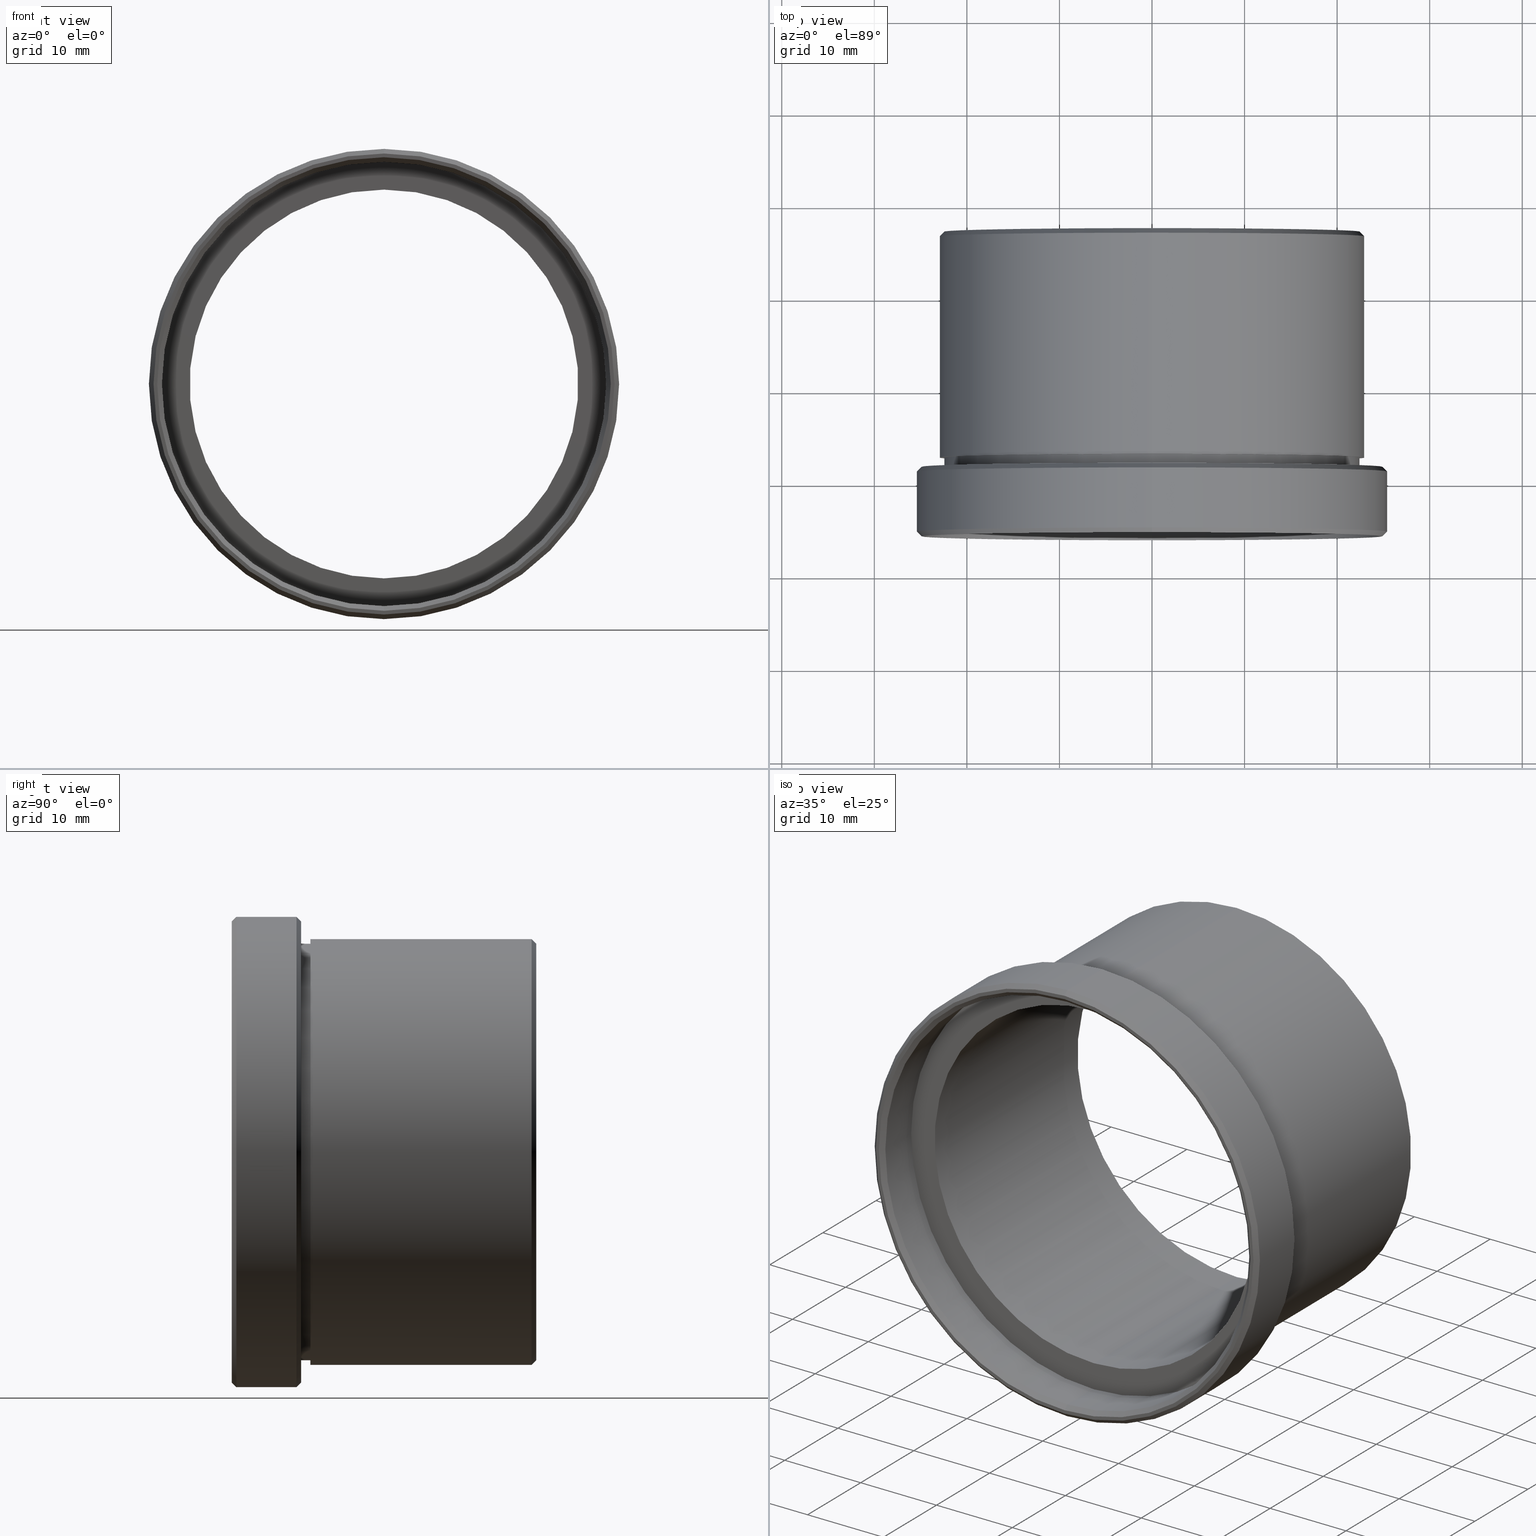
[diagram: canonical four-view strip — front | top / right | iso, engineering-drawing reading convention]
A machine part, canonical four-view strip (front | top / right | iso — engineering-drawing reading convention). The complete STEP part file that produces these views, byte-faithful:
ISO-10303-21;
HEADER;
FILE_DESCRIPTION (( 'STEP AP203' ),
    '1' );
FILE_NAME ('505001.STEP',
    '2019-09-12T01:56:52',
    ( '' ),
    ( '' ),
    'SwSTEP 2.0',
    'SolidWorks 2016',
    '' );
FILE_SCHEMA (( 'CONFIG_CONTROL_DESIGN' ));
ENDSEC;

DATA;
#1 = CARTESIAN_POINT ( 'NONE',  ( 0.0000000000000000000, -0.3571458254331069700, 0.0000000000000000000 ) ) ;
#2 = LINE ( 'NONE', #133, #696 ) ;
#3 = AXIS2_PLACEMENT_3D ( 'NONE', #578, #221, #359 ) ;
#4 = DIRECTION ( 'NONE',  ( 0.0000000000000000000, 0.0000000000000000000, 1.000000000000000000 ) ) ;
#5 = DIRECTION ( 'NONE',  ( 0.0000000000000000000, 0.0000000000000000000, 1.000000000000000000 ) ) ;
#6 = LOCAL_TIME ( 9, 56, 52.00000000000000000, #707 ) ;
#7 = EDGE_CURVE ( 'NONE', #320, #434, #143, .T. ) ;
#8 = FACE_OUTER_BOUND ( 'NONE', #681, .T. ) ;
#9 = ORIENTED_EDGE ( 'NONE', *, *, #550, .T. ) ;
#10 = ORIENTED_EDGE ( 'NONE', *, *, #7, .F. ) ;
#11 = CC_DESIGN_PERSON_AND_ORGANIZATION_ASSIGNMENT ( #408, #880, ( #719 ) ) ;
#12 = ORIENTED_EDGE ( 'NONE', *, *, #494, .F. ) ;
#13 = CARTESIAN_POINT ( 'NONE',  ( 0.0000000000000000000, 0.0000000000000000000, 0.0000000000000000000 ) ) ;
#14 = CARTESIAN_POINT ( 'NONE',  ( 0.0000000000000000000, 44.59859774529311900, 0.0000000000000000000 ) ) ;
#15 = CYLINDRICAL_SURFACE ( 'NONE', #570, 22.50000000000000700 ) ;
#16 = EDGE_CURVE ( 'NONE', #54, #434, #197, .T. ) ;
#17 = ORIENTED_EDGE ( 'NONE', *, *, #337, .F. ) ;
#18 = CONICAL_SURFACE ( 'NONE', #705, 24.90000000000000200, 0.7853981633974518300 ) ;
#19 = CARTESIAN_POINT ( 'NONE',  ( 0.0000000000000000000, 27.04285417456689400, 0.0000000000000000000 ) ) ;
#20 = EDGE_LOOP ( 'NONE', ( #217, #711, #424, #17 ) ) ;
#21 = ORIENTED_EDGE ( 'NONE', *, *, #532, .T. ) ;
#22 = LINE ( 'NONE', #178, #66 ) ;
#23 = DIRECTION ( 'NONE',  ( -0.0000000000000000000, 1.000000000000000000, 0.0000000000000000000 ) ) ;
#24 = EDGE_CURVE ( 'NONE', #773, #203, #289, .T. ) ;
#25 = DIRECTION ( 'NONE',  ( 0.0000000000000000000, 0.0000000000000000000, 1.000000000000000000 ) ) ;
#26 = DATE_AND_TIME ( #538, #6 ) ;
#27 = CIRCLE ( 'NONE', #296, 23.00000000000000700 ) ;
#28 = ORIENTED_EDGE ( 'NONE', *, *, #505, .F. ) ;
#29 = ORIENTED_EDGE ( 'NONE', *, *, #832, .F. ) ;
#30 = ORIENTED_EDGE ( 'NONE', *, *, #580, .F. ) ;
#31 = LOCAL_TIME ( 9, 56, 52.00000000000000000, #67 ) ;
#32 = DIRECTION ( 'NONE',  ( 8.659560562354931600E-017, 0.7071067811865475700, -0.7071067811865474600 ) ) ;
#33 = AXIS2_PLACEMENT_3D ( 'NONE', #534, #119, #235 ) ;
#34 = ADVANCED_FACE ( 'NONE', ( #829, #400 ), #731, .F. ) ;
#35 = PRODUCT_RELATED_PRODUCT_CATEGORY ( 'detail', '', ( #350 ) ) ;
#36 = APPROVAL_PERSON_ORGANIZATION ( #874, #810, #811 ) ;
#37 = DIRECTION ( 'NONE',  ( 0.0000000000000000000, -0.0000000000000000000, -1.000000000000000000 ) ) ;
#38 = VECTOR ( 'NONE', #656, 1000.000000000000000 ) ;
#39 = EDGE_LOOP ( 'NONE', ( #363, #76 ) ) ;
#40 = ADVANCED_FACE ( 'NONE', ( #270 ), #780, .T. ) ;
#41 = CLOSED_SHELL ( 'NONE', ( #524, #587, #519, #40, #367, #447, #231, #715, #794, #665, #596, #303, #299, #726, #103, #432, #370, #34, #171, #868, #585, #167, #863, #802, #729, #229, #659, #109 ) ) ;
#42 = ORIENTED_EDGE ( 'NONE', *, *, #577, .F. ) ;
#43 = AXIS2_PLACEMENT_3D ( 'NONE', #640, #90, #708 ) ;
#44 = LINE ( 'NONE', #193, #839 ) ;
#45 = PERSON_AND_ORGANIZATION_ROLE ( 'creator' ) ;
#46 = CARTESIAN_POINT ( 'NONE',  ( 0.0000000000000000000, 26.54285417456689400, 23.00000000000000400 ) ) ;
#47 = AXIS2_PLACEMENT_3D ( 'NONE', #170, #653, #851 ) ;
#48 = CARTESIAN_POINT ( 'NONE',  ( 0.0000000000000000000, -5.357145825433104100, 0.0000000000000000000 ) ) ;
#49 = PERSON_AND_ORGANIZATION_ROLE ( 'design_owner' ) ;
#50 = LINE ( 'NONE', #260, #540 ) ;
#51 = ORIENTED_EDGE ( 'NONE', *, *, #717, .F. ) ;
#52 = EDGE_LOOP ( 'NONE', ( #12, #104, #497, #286 ) ) ;
#53 = EDGE_CURVE ( 'NONE', #639, #582, #857, .T. ) ;
#54 = VERTEX_POINT ( 'NONE', #172 ) ;
#55 = APPLICATION_CONTEXT ( 'configuration controlled 3d designs of mechanical parts and assemblies' ) ;
#56 = CARTESIAN_POINT ( 'NONE',  ( 0.0000000000000000000, 1.142854174566894300, 0.0000000000000000000 ) ) ;
#57 = CC_DESIGN_PERSON_AND_ORGANIZATION_ASSIGNMENT ( #615, #817, ( #765 ) ) ;
#58 = APPLICATION_CONTEXT ( 'configuration controlled 3d designs of mechanical parts and assemblies' ) ;
#59 = DIRECTION ( 'NONE',  ( 0.0000000000000000000, 0.0000000000000000000, 1.000000000000000000 ) ) ;
#60 = CARTESIAN_POINT ( 'NONE',  ( 0.0000000000000000000, -5.357145825433104100, 0.0000000000000000000 ) ) ;
#61 = CARTESIAN_POINT ( 'NONE',  ( 0.0000000000000000000, 44.59859774529311900, 0.0000000000000000000 ) ) ;
#62 = ORIENTED_EDGE ( 'NONE', *, *, #383, .T. ) ;
#63 = CIRCLE ( 'NONE', #759, 24.90000000000000200 ) ;
#64 = EDGE_LOOP ( 'NONE', ( #562, #816 ) ) ;
#65 = DIRECTION ( 'NONE',  ( -0.0000000000000000000, 1.000000000000000000, -0.0000000000000000000 ) ) ;
#66 = VECTOR ( 'NONE', #381, 1000.000000000000000 ) ;
#67 = COORDINATED_UNIVERSAL_TIME_OFFSET ( 8, 0, .AHEAD. ) ;
#68 = DIRECTION ( 'NONE',  ( -0.0000000000000000000, 1.000000000000000000, -0.0000000000000000000 ) ) ;
#69 = DIRECTION ( 'NONE',  ( 0.0000000000000000000, 0.0000000000000000000, 1.000000000000000000 ) ) ;
#70 = DIRECTION ( 'NONE',  ( 0.0000000000000000000, 0.0000000000000000000, 1.000000000000000000 ) ) ;
#71 = EDGE_CURVE ( 'NONE', #516, #353, #651, .T. ) ;
#72 = CALENDAR_DATE ( 2019, 12, 9 ) ;
#73 = COORDINATED_UNIVERSAL_TIME_OFFSET ( 8, 0, .AHEAD. ) ;
#74 = DIRECTION ( 'NONE',  ( 0.0000000000000000000, 0.0000000000000000000, 1.000000000000000000 ) ) ;
#75 = CYLINDRICAL_SURFACE ( 'NONE', #405, 25.40000000000000600 ) ;
#76 = ORIENTED_EDGE ( 'NONE', *, *, #253, .T. ) ;
#77 = ORIENTED_EDGE ( 'NONE', *, *, #195, .F. ) ;
#78 = DIRECTION ( 'NONE',  ( 0.0000000000000000000, 0.0000000000000000000, -1.000000000000000000 ) ) ;
#79 = VECTOR ( 'NONE', #602, 1000.000000000000000 ) ;
#80 = DIRECTION ( 'NONE',  ( 0.0000000000000000000, 0.0000000000000000000, 1.000000000000000000 ) ) ;
#81 = DIRECTION ( 'NONE',  ( 0.0000000000000000000, 0.0000000000000000000, 1.000000000000000000 ) ) ;
#82 = AXIS2_PLACEMENT_3D ( 'NONE', #48, #604, #466 ) ;
#83 = CALENDAR_DATE ( 2019, 12, 9 ) ;
#84 = DIRECTION ( 'NONE',  ( 0.0000000000000000000, 0.0000000000000000000, 1.000000000000000000 ) ) ;
#85 = CIRCLE ( 'NONE', #784, 24.00000000000000700 ) ;
#86 = EDGE_LOOP ( 'NONE', ( #770, #388, #293, #333 ) ) ;
#87 = CC_DESIGN_DATE_AND_TIME_ASSIGNMENT ( #123, #451, ( #765 ) ) ;
#88 = VERTEX_POINT ( 'NONE', #386 ) ;
#89 = VECTOR ( 'NONE', #65, 1000.000000000000000 ) ;
#90 = DIRECTION ( 'NONE',  ( -0.0000000000000000000, 1.000000000000000000, -0.0000000000000000000 ) ) ;
#91 = AXIS2_PLACEMENT_3D ( 'NONE', #686, #892, #480 ) ;
#92 = DIRECTION ( 'NONE',  ( 0.0000000000000000000, 0.0000000000000000000, 1.000000000000000000 ) ) ;
#93 = PERSON_AND_ORGANIZATION ( #285, #455 ) ;
#94 = CC_DESIGN_SECURITY_CLASSIFICATION ( #719, ( #322 ) ) ;
#95 = ORIENTED_EDGE ( 'NONE', *, *, #199, .F. ) ;
#96 = ORIENTED_EDGE ( 'NONE', *, *, #337, .T. ) ;
#97 = VERTEX_POINT ( 'NONE', #737 ) ;
#98 = VERTEX_POINT ( 'NONE', #444 ) ;
#99 =( NAMED_UNIT ( * ) SI_UNIT ( $, .STERADIAN. ) SOLID_ANGLE_UNIT ( ) );
#100 = CC_DESIGN_DATE_AND_TIME_ASSIGNMENT ( #559, #808, ( #719 ) ) ;
#101 = CARTESIAN_POINT ( 'NONE',  ( 0.0000000000000000000, 44.59859774529311900, 24.00000000000000700 ) ) ;
#102 = APPROVAL_PERSON_ORGANIZATION ( #93, #634, #385 ) ;
#103 = ADVANCED_FACE ( 'NONE', ( #445, #247 ), #881, .F. ) ;
#104 = ORIENTED_EDGE ( 'NONE', *, *, #7, .T. ) ;
#105 = CARTESIAN_POINT ( 'NONE',  ( 0.0000000000000000000, 2.642854174566895900, 23.00000000000000700 ) ) ;
#106 = ORIENTED_EDGE ( 'NONE', *, *, #627, .T. ) ;
#107 = FACE_OUTER_BOUND ( 'NONE', #226, .T. ) ;
#108 = DIRECTION ( 'NONE',  ( 0.0000000000000000000, 0.0000000000000000000, 1.000000000000000000 ) ) ;
#109 = ADVANCED_FACE ( 'NONE', ( #633 ), #258, .T. ) ;
#110 = EDGE_CURVE ( 'NONE', #287, #649, #22, .T. ) ;
#111 = APPROVAL_STATUS ( 'not_yet_approved' ) ;
#112 = DESIGN_CONTEXT ( 'detailed design', #539, 'design' ) ;
#113 = DIRECTION ( 'NONE',  ( -0.0000000000000000000, 1.000000000000000000, 0.0000000000000000000 ) ) ;
#114 = CARTESIAN_POINT ( 'NONE',  ( 0.0000000000000000000, -5.857145825433105000, 24.90000000000000200 ) ) ;
#115 = EDGE_CURVE ( 'NONE', #582, #639, #804, .T. ) ;
#116 = ORIENTED_EDGE ( 'NONE', *, *, #685, .F. ) ;
#117 = ORIENTED_EDGE ( 'NONE', *, *, #53, .T. ) ;
#118 = DIRECTION ( 'NONE',  ( 0.0000000000000000000, -0.7071067811865475700, -0.7071067811865474600 ) ) ;
#119 = DIRECTION ( 'NONE',  ( -0.0000000000000000000, 1.000000000000000000, -0.0000000000000000000 ) ) ;
#120 = APPLICATION_PROTOCOL_DEFINITION ( 'international standard', 'config_control_design', 1994, #58 ) ;
#121 = DIRECTION ( 'NONE',  ( -0.0000000000000000000, 1.000000000000000000, -0.0000000000000000000 ) ) ;
#122 = PERSON_AND_ORGANIZATION ( #285, #455 ) ;
#123 = DATE_AND_TIME ( #72, #421 ) ;
#124 = COORDINATED_UNIVERSAL_TIME_OFFSET ( 8, 0, .AHEAD. ) ;
#125 = AXIS2_PLACEMENT_3D ( 'NONE', #598, #319, #131 ) ;
#126 = DIRECTION ( 'NONE',  ( -0.0000000000000000000, 1.000000000000000000, -0.0000000000000000000 ) ) ;
#127 = VERTEX_POINT ( 'NONE', #592 ) ;
#128 = LINE ( 'NONE', #842, #255 ) ;
#129 = ORIENTED_EDGE ( 'NONE', *, *, #537, .T. ) ;
#130 = LINE ( 'NONE', #395, #89 ) ;
#131 = DIRECTION ( 'NONE',  ( 0.0000000000000000000, 0.0000000000000000000, 1.000000000000000000 ) ) ;
#132 = CC_DESIGN_PERSON_AND_ORGANIZATION_ASSIGNMENT ( #883, #741, ( #797 ) ) ;
#133 = CARTESIAN_POINT ( 'NONE',  ( 3.049370529876910100E-015, -5.857145825433105000, -24.90000000000000200 ) ) ;
#134 = DIRECTION ( 'NONE',  ( -0.0000000000000000000, 1.000000000000000000, -0.0000000000000000000 ) ) ;
#135 = AXIS2_PLACEMENT_3D ( 'NONE', #484, #252, #80 ) ;
#136 = DIRECTION ( 'NONE',  ( 0.0000000000000000000, 0.0000000000000000000, -1.000000000000000000 ) ) ;
#137 = DIRECTION ( 'NONE',  ( 0.0000000000000000000, -1.000000000000000000, 0.0000000000000000000 ) ) ;
#138 = FACE_OUTER_BOUND ( 'NONE', #489, .T. ) ;
#139 = CARTESIAN_POINT ( 'NONE',  ( 0.0000000000000000000, 26.54285417456689400, 0.0000000000000000000 ) ) ;
#140 = CONICAL_SURFACE ( 'NONE', #327, 23.00000000000000400, 0.7853981633974482800 ) ;
#141 = ORIENTED_EDGE ( 'NONE', *, *, #485, .F. ) ;
#142 = ORIENTED_EDGE ( 'NONE', *, *, #550, .F. ) ;
#143 = LINE ( 'NONE', #800, #236 ) ;
#144 = AXIS2_PLACEMENT_3D ( 'NONE', #786, #284, #163 ) ;
#145 = CARTESIAN_POINT ( 'NONE',  ( 0.0000000000000000000, -5.357145825433104100, 24.00000000000000700 ) ) ;
#146 = DIRECTION ( 'NONE',  ( -0.0000000000000000000, 1.000000000000000000, -0.0000000000000000000 ) ) ;
#147 = DIRECTION ( 'NONE',  ( 0.0000000000000000000, 0.0000000000000000000, 1.000000000000000000 ) ) ;
#148 = APPROVAL ( #671, 'δָ��' ) ;
#149 = CIRCLE ( 'NONE', #742, 24.10000000000000900 ) ;
#150 = ORIENTED_EDGE ( 'NONE', *, *, #210, .T. ) ;
#151 = DIRECTION ( 'NONE',  ( 0.0000000000000000000, 0.0000000000000000000, 1.000000000000000000 ) ) ;
#152 = ORIENTED_EDGE ( 'NONE', *, *, #210, .F. ) ;
#153 = VECTOR ( 'NONE', #118, 1000.000000000000000 ) ;
#154 = CARTESIAN_POINT ( 'NONE',  ( 2.951398785945122000E-015, 44.59859774529311900, -24.10000000000000900 ) ) ;
#155 = DIRECTION ( 'NONE',  ( -0.0000000000000000000, 1.000000000000000000, -0.0000000000000000000 ) ) ;
#156 = EDGE_CURVE ( 'NONE', #371, #574, #866, .T. ) ;
#157 = DIRECTION ( 'NONE',  ( 0.0000000000000000000, 0.0000000000000000000, 1.000000000000000000 ) ) ;
#158 = CIRCLE ( 'NONE', #305, 24.00000000000000700 ) ;
#159 = ORIENTED_EDGE ( 'NONE', *, *, #646, .F. ) ;
#160 = LINE ( 'NONE', #867, #510 ) ;
#161 = EDGE_CURVE ( 'NONE', #254, #732, #789, .T. ) ;
#162 =( NAMED_UNIT ( * ) PLANE_ANGLE_UNIT ( ) SI_UNIT ( $, .RADIAN. ) );
#163 = DIRECTION ( 'NONE',  ( 0.0000000000000000000, -0.0000000000000000000, -1.000000000000000000 ) ) ;
#164 = ORIENTED_EDGE ( 'NONE', *, *, #300, .F. ) ;
#165 = VERTEX_POINT ( 'NONE', #882 ) ;
#166 = DIRECTION ( 'NONE',  ( -0.0000000000000000000, 1.000000000000000000, -0.0000000000000000000 ) ) ;
#167 = ADVANCED_FACE ( 'NONE', ( #435 ), #622, .F. ) ;
#168 = EDGE_CURVE ( 'NONE', #371, #54, #219, .T. ) ;
#169 = CC_DESIGN_DATE_AND_TIME_ASSIGNMENT ( #26, #745, ( #824 ) ) ;
#170 = CARTESIAN_POINT ( 'NONE',  ( 0.0000000000000000000, 0.0000000000000000000, 0.0000000000000000000 ) ) ;
#171 = ADVANCED_FACE ( 'NONE', ( #878 ), #682, .F. ) ;
#172 = CARTESIAN_POINT ( 'NONE',  ( 2.816687638038912700E-015, 26.54285417456689400, -23.00000000000000400 ) ) ;
#173 = CARTESIAN_POINT ( 'NONE',  ( 0.0000000000000000000, 27.04285417456689400, 0.0000000000000000000 ) ) ;
#174 = CIRCLE ( 'NONE', #525, 21.00000000000000700 ) ;
#175 = AXIS2_PLACEMENT_3D ( 'NONE', #605, #347, #277 ) ;
#176 = ORIENTED_EDGE ( 'NONE', *, *, #168, .T. ) ;
#177 = CIRCLE ( 'NONE', #612, 24.50000000000000700 ) ;
#178 = CARTESIAN_POINT ( 'NONE',  ( 0.0000000000000000000, 44.59859774529311900, 22.50000000000000700 ) ) ;
#179 = CARTESIAN_POINT ( 'NONE',  ( 0.0000000000000000000, 2.642854174566895900, 0.0000000000000000000 ) ) ;
#180 = AXIS2_PLACEMENT_3D ( 'NONE', #13, #781, #403 ) ;
#181 = CARTESIAN_POINT ( 'NONE',  ( 21.50000000000000700, 27.04285417456689400, 0.0000000000000000000 ) ) ;
#182 = CIRCLE ( 'NONE', #175, 21.00000000000000700 ) ;
#183 = EDGE_LOOP ( 'NONE', ( #761, #543 ) ) ;
#184 = LINE ( 'NONE', #154, #748 ) ;
#185 = ORIENTED_EDGE ( 'NONE', *, *, #632, .F. ) ;
#186 = SECURITY_CLASSIFICATION_LEVEL ( 'unclassified' ) ;
#187 = EDGE_LOOP ( 'NONE', ( #268, #669 ) ) ;
#188 = CARTESIAN_POINT ( 'NONE',  ( 2.786071468060229000E-015, 27.04285417456689400, 22.50000000000000400 ) ) ;
#189 = PRODUCT_DEFINITION_FORMATION_WITH_SPECIFIED_SOURCE ( '�κ�', '', #350, .NOT_KNOWN. ) ;
#190 = CARTESIAN_POINT ( 'NONE',  ( 0.0000000000000000000, 44.59859774529311900, 0.0000000000000000000 ) ) ;
#191 = DIRECTION ( 'NONE',  ( -0.0000000000000000000, 1.000000000000000000, -0.0000000000000000000 ) ) ;
#192 = CIRCLE ( 'NONE', #752, 24.90000000000000200 ) ;
#193 = CARTESIAN_POINT ( 'NONE',  ( 0.0000000000000000000, 44.59859774529311900, 21.00000000000000700 ) ) ;
#194 = FACE_OUTER_BOUND ( 'NONE', #498, .T. ) ;
#195 = EDGE_CURVE ( 'NONE', #88, #254, #44, .T. ) ;
#196 = CARTESIAN_POINT ( 'NONE',  ( 0.0000000000000000000, -1.357145825433107900, 0.0000000000000000000 ) ) ;
#197 = CIRCLE ( 'NONE', #654, 23.00000000000000400 ) ;
#198 = DIRECTION ( 'NONE',  ( -0.0000000000000000000, 1.000000000000000000, -0.0000000000000000000 ) ) ;
#199 = EDGE_CURVE ( 'NONE', #478, #639, #594, .T. ) ;
#200 = DIRECTION ( 'NONE',  ( 8.659560562354931600E-017, -0.7071067811865475700, 0.7071067811865474600 ) ) ;
#201 = DATE_AND_TIME ( #273, #841 ) ;
#202 = DIRECTION ( 'NONE',  ( -0.0000000000000000000, 1.000000000000000000, -0.0000000000000000000 ) ) ;
#203 = VERTEX_POINT ( 'NONE', #680 ) ;
#204 = EDGE_LOOP ( 'NONE', ( #117, #323, #341, #51 ) ) ;
#205 = ORIENTED_EDGE ( 'NONE', *, *, #740, .F. ) ;
#206 = PRODUCT_DEFINITION_SHAPE ( 'NONE', 'NONE',  #765 ) ;
#207 = DIRECTION ( 'NONE',  ( -0.0000000000000000000, 1.000000000000000000, -0.0000000000000000000 ) ) ;
#208 = AXIS2_PLACEMENT_3D ( 'NONE', #818, #528, #825 ) ;
#209 = PERSON_AND_ORGANIZATION ( #285, #455 ) ;
#210 = EDGE_CURVE ( 'NONE', #460, #573, #428, .T. ) ;
#211 = LOCAL_TIME ( 9, 56, 52.00000000000000000, #785 ) ;
#212 = DIRECTION ( 'NONE',  ( 0.0000000000000000000, 0.0000000000000000000, 1.000000000000000000 ) ) ;
#213 = CC_DESIGN_APPROVAL ( #810, ( #765 ) ) ;
#214 = EDGE_LOOP ( 'NONE', ( #520, #897 ) ) ;
#215 = FACE_OUTER_BOUND ( 'NONE', #457, .T. ) ;
#216 = PRODUCT ( '505001', '505001', '', ( #673 ) ) ;
#217 = ORIENTED_EDGE ( 'NONE', *, *, #288, .F. ) ;
#218 = ORIENTED_EDGE ( 'NONE', *, *, #485, .T. ) ;
#219 = LINE ( 'NONE', #623, #492 ) ;
#220 = DIRECTION ( 'NONE',  ( -0.0000000000000000000, 1.000000000000000000, -0.0000000000000000000 ) ) ;
#221 = DIRECTION ( 'NONE',  ( -0.0000000000000000000, 1.000000000000000000, -0.0000000000000000000 ) ) ;
#222 = COORDINATED_UNIVERSAL_TIME_OFFSET ( 8, 0, .AHEAD. ) ;
#223 = CC_DESIGN_PERSON_AND_ORGANIZATION_ASSIGNMENT ( #796, #49, ( #350 ) ) ;
#224 = EDGE_LOOP ( 'NONE', ( #887, #399, #721, #776 ) ) ;
#225 = ORIENTED_EDGE ( 'NONE', *, *, #24, .T. ) ;
#226 = EDGE_LOOP ( 'NONE', ( #141, #722 ) ) ;
#227 = DIRECTION ( 'NONE',  ( 0.0000000000000000000, 0.0000000000000000000, 1.000000000000000000 ) ) ;
#228 = APPROVAL ( #239, 'δָ��' ) ;
#229 = ADVANCED_FACE ( 'NONE', ( #278 ), #462, .T. ) ;
#230 = CARTESIAN_POINT ( 'NONE',  ( 3.110602869834277700E-015, 1.142854174566894300, 25.40000000000000600 ) ) ;
#231 = ADVANCED_FACE ( 'NONE', ( #661 ), #763, .F. ) ;
#232 = ORIENTED_EDGE ( 'NONE', *, *, #503, .T. ) ;
#233 = FACE_OUTER_BOUND ( 'NONE', #257, .T. ) ;
#234 = ORIENTED_EDGE ( 'NONE', *, *, #877, .F. ) ;
#235 = DIRECTION ( 'NONE',  ( 0.0000000000000000000, 0.0000000000000000000, 1.000000000000000000 ) ) ;
#236 = VECTOR ( 'NONE', #667, 1000.000000000000000 ) ;
#237 = CARTESIAN_POINT ( 'NONE',  ( 0.0000000000000000000, 1.642854174566894800, -24.90000000000000200 ) ) ;
#238 = EDGE_CURVE ( 'NONE', #864, #98, #557, .T. ) ;
#239 = APPROVAL_STATUS ( 'not_yet_approved' ) ;
#240 = DIRECTION ( 'NONE',  ( 0.0000000000000000000, 0.0000000000000000000, 1.000000000000000000 ) ) ;
#241 = DIRECTION ( 'NONE',  ( 0.0000000000000000000, 0.0000000000000000000, 1.000000000000000000 ) ) ;
#242 = CARTESIAN_POINT ( 'NONE',  ( 0.0000000000000000000, 27.04285417456689400, 21.50000000000000700 ) ) ;
#243 = EDGE_CURVE ( 'NONE', #413, #749, #298, .T. ) ;
#244 = CARTESIAN_POINT ( 'NONE',  ( 2.632990618166810400E-015, 27.04285417456689400, -21.50000000000000700 ) ) ;
#245 = ORIENTED_EDGE ( 'NONE', *, *, #577, .T. ) ;
#246 = ORIENTED_EDGE ( 'NONE', *, *, #300, .T. ) ;
#247 = FACE_OUTER_BOUND ( 'NONE', #64, .T. ) ;
#248 = APPROVAL_ROLE ( '' ) ;
#249 = DIRECTION ( 'NONE',  ( -0.0000000000000000000, 1.000000000000000000, -0.0000000000000000000 ) ) ;
#250 = CARTESIAN_POINT ( 'NONE',  ( 0.0000000000000000000, 26.54285417456689400, 21.00000000000000700 ) ) ;
#251 = PERSON_AND_ORGANIZATION ( #285, #455 ) ;
#252 = DIRECTION ( 'NONE',  ( -0.0000000000000000000, 1.000000000000000000, -0.0000000000000000000 ) ) ;
#253 = EDGE_CURVE ( 'NONE', #668, #203, #177, .T. ) ;
#254 = VERTEX_POINT ( 'NONE', #250 ) ;
#255 = VECTOR ( 'NONE', #652, 1000.000000000000000 ) ;
#256 = DIRECTION ( 'NONE',  ( -0.0000000000000000000, 1.000000000000000000, -0.0000000000000000000 ) ) ;
#257 = EDGE_LOOP ( 'NONE', ( #734, #29 ) ) ;
#258 = CYLINDRICAL_SURFACE ( 'NONE', #33, 22.50000000000000700 ) ;
#259 = PERSON_AND_ORGANIZATION ( #285, #455 ) ;
#260 = CARTESIAN_POINT ( 'NONE',  ( 0.0000000000000000000, 26.54285417456689400, -23.00000000000000400 ) ) ;
#261 = DIRECTION ( 'NONE',  ( 0.0000000000000000000, 0.0000000000000000000, 1.000000000000000000 ) ) ;
#262 = AXIS2_PLACEMENT_3D ( 'NONE', #14, #775, #504 ) ;
#263 = DIRECTION ( 'NONE',  ( 0.0000000000000000000, 0.0000000000000000000, -1.000000000000000000 ) ) ;
#264 = DIRECTION ( 'NONE',  ( -0.0000000000000000000, 1.000000000000000000, -0.0000000000000000000 ) ) ;
#265 = ORIENTED_EDGE ( 'NONE', *, *, #110, .T. ) ;
#266 = CIRCLE ( 'NONE', #558, 24.00000000000000700 ) ;
#267 = ORIENTED_EDGE ( 'NONE', *, *, #871, .F. ) ;
#268 = ORIENTED_EDGE ( 'NONE', *, *, #871, .T. ) ;
#269 = DIRECTION ( 'NONE',  ( 0.0000000000000000000, -1.000000000000000000, 0.0000000000000000000 ) ) ;
#270 = FACE_OUTER_BOUND ( 'NONE', #750, .T. ) ;
#271 = CARTESIAN_POINT ( 'NONE',  ( 0.0000000000000000000, -1.357145825433107900, 0.0000000000000000000 ) ) ;
#272 = APPROVAL ( #111, 'δָ��' ) ;
#273 = CALENDAR_DATE ( 2019, 12, 9 ) ;
#274 = DIRECTION ( 'NONE',  ( 0.0000000000000000000, 0.0000000000000000000, 1.000000000000000000 ) ) ;
#275 = ORIENTED_EDGE ( 'NONE', *, *, #238, .T. ) ;
#276 = ORIENTED_EDGE ( 'NONE', *, *, #253, .F. ) ;
#277 = DIRECTION ( 'NONE',  ( 0.0000000000000000000, 0.0000000000000000000, 1.000000000000000000 ) ) ;
#278 = FACE_OUTER_BOUND ( 'NONE', #693, .T. ) ;
#279 = CARTESIAN_POINT ( 'NONE',  ( 0.0000000000000000000, 27.04285417456689400, 0.0000000000000000000 ) ) ;
#280 = CARTESIAN_POINT ( 'NONE',  ( 0.0000000000000000000, 27.04285417456689400, 21.50000000000000700 ) ) ;
#281 = EDGE_CURVE ( 'NONE', #434, #54, #377, .T. ) ;
#282 = CARTESIAN_POINT ( 'NONE',  ( 24.90000000000000200, -5.857145825433105900, 0.0000000000000000000 ) ) ;
#283 = CONICAL_SURFACE ( 'NONE', #836, 23.00000000000000400, 0.7853981633974482800 ) ;
#284 = DIRECTION ( 'NONE',  ( 0.0000000000000000000, -1.000000000000000000, 0.0000000000000000000 ) ) ;
#285 = PERSON ( 'δָ��', 'δָ��', 'δָ��', ('δָ��'), ('δָ��'), ('δָ��') ) ;
#286 = ORIENTED_EDGE ( 'NONE', *, *, #599, .F. ) ;
#287 = VERTEX_POINT ( 'NONE', #754 ) ;
#288 = EDGE_CURVE ( 'NONE', #582, #749, #643, .T. ) ;
#289 = LINE ( 'NONE', #448, #153 ) ;
#290 = PLANE ( 'NONE',  #358 ) ;
#291 = CALENDAR_DATE ( 2019, 12, 9 ) ;
#292 = FACE_OUTER_BOUND ( 'NONE', #813, .T. ) ;
#293 = ORIENTED_EDGE ( 'NONE', *, *, #71, .T. ) ;
#294 = CIRCLE ( 'NONE', #452, 24.90000000000000200 ) ;
#295 = DIRECTION ( 'NONE',  ( 0.0000000000000000000, 0.0000000000000000000, 1.000000000000000000 ) ) ;
#296 = AXIS2_PLACEMENT_3D ( 'NONE', #179, #518, #227 ) ;
#297 = CALENDAR_DATE ( 2019, 12, 9 ) ;
#298 = CIRCLE ( 'NONE', #392, 25.40000000000000600 ) ;
#299 = ADVANCED_FACE ( 'NONE', ( #846 ), #324, .T. ) ;
#300 = EDGE_CURVE ( 'NONE', #692, #649, #479, .T. ) ;
#301 = DIRECTION ( 'NONE',  ( 0.0000000000000000000, 0.0000000000000000000, 1.000000000000000000 ) ) ;
#302 = CARTESIAN_POINT ( 'NONE',  ( 0.0000000000000000000, 27.04285417456689400, 0.0000000000000000000 ) ) ;
#303 = ADVANCED_FACE ( 'NONE', ( #107, #712 ), #382, .F. ) ;
#304 = PERSON_AND_ORGANIZATION_ROLE ( 'design_supplier' ) ;
#305 = AXIS2_PLACEMENT_3D ( 'NONE', #417, #576, #157 ) ;
#306 = CARTESIAN_POINT ( 'NONE',  ( 0.0000000000000000000, 44.59859774529311900, 0.0000000000000000000 ) ) ;
#307 = LINE ( 'NONE', #329, #331 ) ;
#308 = EDGE_LOOP ( 'NONE', ( #865, #607, #364, #391 ) ) ;
#309 = CIRCLE ( 'NONE', #849, 22.50000000000000700 ) ;
#310 = VERTEX_POINT ( 'NONE', #244 ) ;
#311 = EDGE_LOOP ( 'NONE', ( #826, #21, #546, #845 ) ) ;
#312 = APPLICATION_PROTOCOL_DEFINITION ( 'international standard', 'config_control_design', 1994, #539 ) ;
#313 = COORDINATED_UNIVERSAL_TIME_OFFSET ( 8, 0, .AHEAD. ) ;
#314 =( GEOMETRIC_REPRESENTATION_CONTEXT ( 3 ) GLOBAL_UNCERTAINTY_ASSIGNED_CONTEXT ( ( #791 ) ) GLOBAL_UNIT_ASSIGNED_CONTEXT ( ( #579, #162, #99 ) ) REPRESENTATION_CONTEXT ( 'NONE', 'WORKASPACE' ) );
#315 = PERSON_AND_ORGANIZATION_ROLE ( 'classification_officer' ) ;
#316 = DIRECTION ( 'NONE',  ( 0.0000000000000000000, 0.0000000000000000000, 1.000000000000000000 ) ) ;
#317 = PERSON_AND_ORGANIZATION_ROLE ( 'design_supplier' ) ;
#318 = FACE_OUTER_BOUND ( 'NONE', #490, .T. ) ;
#319 = DIRECTION ( 'NONE',  ( -0.0000000000000000000, 1.000000000000000000, -0.0000000000000000000 ) ) ;
#320 = VERTEX_POINT ( 'NONE', #188 ) ;
#321 = CIRCLE ( 'NONE', #355, 22.50000000000000700 ) ;
#322 = PRODUCT_DEFINITION_FORMATION_WITH_SPECIFIED_SOURCE ( '�κ�', '', #216, .NOT_KNOWN. ) ;
#323 = ORIENTED_EDGE ( 'NONE', *, *, #288, .T. ) ;
#324 = CYLINDRICAL_SURFACE ( 'NONE', #515, 23.00000000000000700 ) ;
#325 = CARTESIAN_POINT ( 'NONE',  ( 0.0000000000000000000, 26.54285417456689400, 0.0000000000000000000 ) ) ;
#326 = DIRECTION ( 'NONE',  ( 0.0000000000000000000, -0.0000000000000000000, -1.000000000000000000 ) ) ;
#327 = AXIS2_PLACEMENT_3D ( 'NONE', #495, #645, #772 ) ;
#328 = CARTESIAN_POINT ( 'NONE',  ( 0.0000000000000000000, 1.142854174566894300, 0.0000000000000000000 ) ) ;
#329 = CARTESIAN_POINT ( 'NONE',  ( 2.939152317953648700E-015, -5.357145825433104100, 24.00000000000000700 ) ) ;
#330 = CARTESIAN_POINT ( 'NONE',  ( 0.0000000000000000000, 44.59859774529311900, 0.0000000000000000000 ) ) ;
#331 = VECTOR ( 'NONE', #200, 1000.000000000000000 ) ;
#332 = DIRECTION ( 'NONE',  ( 0.0000000000000000000, 0.0000000000000000000, 1.000000000000000000 ) ) ;
#333 = ORIENTED_EDGE ( 'NONE', *, *, #580, .T. ) ;
#334 = CARTESIAN_POINT ( 'NONE',  ( 0.0000000000000000000, -5.357145825433104100, 0.0000000000000000000 ) ) ;
#335 = FACE_OUTER_BOUND ( 'NONE', #827, .T. ) ;
#336 = DIRECTION ( 'NONE',  ( 0.0000000000000000000, 0.0000000000000000000, -1.000000000000000000 ) ) ;
#337 = EDGE_CURVE ( 'NONE', #749, #413, #702, .T. ) ;
#338 = CARTESIAN_POINT ( 'NONE',  ( 0.0000000000000000000, 1.642854174566894800, 0.0000000000000000000 ) ) ;
#339 = CYLINDRICAL_SURFACE ( 'NONE', #647, 23.00000000000000700 ) ;
#340 = EDGE_LOOP ( 'NONE', ( #376, #205 ) ) ;
#341 = ORIENTED_EDGE ( 'NONE', *, *, #243, .F. ) ;
#342 = DIRECTION ( 'NONE',  ( -0.0000000000000000000, 1.000000000000000000, -0.0000000000000000000 ) ) ;
#343 = ORIENTED_EDGE ( 'NONE', *, *, #644, .F. ) ;
#344 = CARTESIAN_POINT ( 'NONE',  ( 0.0000000000000000000, -5.857145825433105000, 0.0000000000000000000 ) ) ;
#345 = AXIS2_PLACEMENT_3D ( 'NONE', #181, #875, #37 ) ;
#346 = EDGE_CURVE ( 'NONE', #574, #434, #130, .T. ) ;
#347 = DIRECTION ( 'NONE',  ( -0.0000000000000000000, 1.000000000000000000, -0.0000000000000000000 ) ) ;
#348 = DIRECTION ( 'NONE',  ( -0.0000000000000000000, 1.000000000000000000, -0.0000000000000000000 ) ) ;
#349 = PERSON_AND_ORGANIZATION ( #285, #455 ) ;
#350 = PRODUCT ( '505001', '505001', '', ( #600 ) ) ;
#351 = VECTOR ( 'NONE', #764, 1000.000000000000000 ) ;
#352 = ORIENTED_EDGE ( 'NONE', *, *, #243, .T. ) ;
#353 = VERTEX_POINT ( 'NONE', #687 ) ;
#354 = VERTEX_POINT ( 'NONE', #762 ) ;
#355 = AXIS2_PLACEMENT_3D ( 'NONE', #338, #774, #147 ) ;
#356 = FACE_OUTER_BOUND ( 'NONE', #308, .T. ) ;
#357 = CARTESIAN_POINT ( 'NONE',  ( 0.0000000000000000000, -0.3571458254331069700, 0.0000000000000000000 ) ) ;
#358 = AXIS2_PLACEMENT_3D ( 'NONE', #282, #23, #716 ) ;
#359 = DIRECTION ( 'NONE',  ( 0.0000000000000000000, 0.0000000000000000000, 1.000000000000000000 ) ) ;
#360 = AXIS2_PLACEMENT_3D ( 'NONE', #56, #613, #136 ) ;
#361 = ORIENTED_EDGE ( 'NONE', *, *, #431, .F. ) ;
#362 = CIRCLE ( 'NONE', #423, 21.50000000000000700 ) ;
#363 = ORIENTED_EDGE ( 'NONE', *, *, #443, .T. ) ;
#364 = ORIENTED_EDGE ( 'NONE', *, *, #443, .F. ) ;
#365 = DIRECTION ( 'NONE',  ( 8.659560562354963700E-017, -0.7071067811865450200, 0.7071067811865500200 ) ) ;
#366 = CC_DESIGN_SECURITY_CLASSIFICATION ( #824, ( #189 ) ) ;
#367 = ADVANCED_FACE ( 'NONE', ( #356 ), #521, .F. ) ;
#368 = AXIS2_PLACEMENT_3D ( 'NONE', #411, #486, #5 ) ;
#369 = CYLINDRICAL_SURFACE ( 'NONE', #793, 24.00000000000000700 ) ;
#370 = ADVANCED_FACE ( 'NONE', ( #535 ), #670, .F. ) ;
#371 = VERTEX_POINT ( 'NONE', #831 ) ;
#372 = FACE_OUTER_BOUND ( 'NONE', #183, .T. ) ;
#373 = CARTESIAN_POINT ( 'NONE',  ( 0.0000000000000000000, -5.357145825433104100, 0.0000000000000000000 ) ) ;
#374 = CARTESIAN_POINT ( 'NONE',  ( 0.0000000000000000000, 44.59859774529311900, 0.0000000000000000000 ) ) ;
#375 = VERTEX_POINT ( 'NONE', #536 ) ;
#376 = ORIENTED_EDGE ( 'NONE', *, *, #730, .F. ) ;
#377 = CIRCLE ( 'NONE', #588, 23.00000000000000400 ) ;
#378 = DATE_TIME_ROLE ( 'creation_date' ) ;
#379 = DIRECTION ( 'NONE',  ( -0.0000000000000000000, 1.000000000000000000, -0.0000000000000000000 ) ) ;
#380 = APPLICATION_PROTOCOL_DEFINITION ( 'international standard', 'config_control_design', 1994, #597 ) ;
#381 = DIRECTION ( 'NONE',  ( -0.0000000000000000000, 1.000000000000000000, -0.0000000000000000000 ) ) ;
#382 = PLANE ( 'NONE',  #727 ) ;
#383 = EDGE_CURVE ( 'NONE', #97, #582, #2, .T. ) ;
#384 = COORDINATED_UNIVERSAL_TIME_OFFSET ( 8, 0, .AHEAD. ) ;
#385 = APPROVAL_ROLE ( '' ) ;
#386 = CARTESIAN_POINT ( 'NONE',  ( 0.0000000000000000000, -0.3571458254331069700, 21.00000000000000700 ) ) ;
#387 = CARTESIAN_POINT ( 'NONE',  ( 23.00000000000000700, 2.642854174566894100, 0.0000000000000000000 ) ) ;
#388 = ORIENTED_EDGE ( 'NONE', *, *, #556, .F. ) ;
#389 = ORIENTED_EDGE ( 'NONE', *, *, #691, .F. ) ;
#390 = APPROVAL_ROLE ( '' ) ;
#391 = ORIENTED_EDGE ( 'NONE', *, *, #24, .F. ) ;
#392 = AXIS2_PLACEMENT_3D ( 'NONE', #690, #482, #261 ) ;
#393 = DIRECTION ( 'NONE',  ( 0.0000000000000000000, -0.7071067811865475700, -0.7071067811865474600 ) ) ;
#394 = DIRECTION ( 'NONE',  ( 0.0000000000000000000, 0.0000000000000000000, 1.000000000000000000 ) ) ;
#395 = CARTESIAN_POINT ( 'NONE',  ( 0.0000000000000000000, 44.59859774529311900, 23.00000000000000700 ) ) ;
#396 = ORIENTED_EDGE ( 'NONE', *, *, #537, .F. ) ;
#397 = CIRCLE ( 'NONE', #3, 22.50000000000000400 ) ;
#398 = ORIENTED_EDGE ( 'NONE', *, *, #503, .F. ) ;
#399 = ORIENTED_EDGE ( 'NONE', *, *, #832, .T. ) ;
#400 = FACE_BOUND ( 'NONE', #187, .T. ) ;
#401 = APPROVAL_PERSON_ORGANIZATION ( #595, #148, #390 ) ;
#402 = DIRECTION ( 'NONE',  ( 0.0000000000000000000, 0.7071067811865450200, 0.7071067811865500200 ) ) ;
#403 = DIRECTION ( 'NONE',  ( 1.000000000000000000, 0.0000000000000000000, 0.0000000000000000000 ) ) ;
#404 = DIRECTION ( 'NONE',  ( 0.0000000000000000000, 0.0000000000000000000, 1.000000000000000000 ) ) ;
#405 = AXIS2_PLACEMENT_3D ( 'NONE', #374, #449, #723 ) ;
#406 = DIRECTION ( 'NONE',  ( -0.0000000000000000000, 1.000000000000000000, -0.0000000000000000000 ) ) ;
#407 = DIRECTION ( 'NONE',  ( -0.0000000000000000000, 1.000000000000000000, -0.0000000000000000000 ) ) ;
#408 = PERSON_AND_ORGANIZATION ( #285, #455 ) ;
#409 = CARTESIAN_POINT ( 'NONE',  ( 0.0000000000000000000, 1.142854174566894300, 0.0000000000000000000 ) ) ;
#410 = APPROVAL_PERSON_ORGANIZATION ( #603, #569, #456 ) ;
#411 = CARTESIAN_POINT ( 'NONE',  ( 0.0000000000000000000, 1.642854174566894800, 0.0000000000000000000 ) ) ;
#412 = CIRCLE ( 'NONE', #135, 24.10000000000000900 ) ;
#413 = VERTEX_POINT ( 'NONE', #801 ) ;
#414 = ORIENTED_EDGE ( 'NONE', *, *, #161, .F. ) ;
#415 = ORIENTED_EDGE ( 'NONE', *, *, #450, .F. ) ;
#416 = DATE_AND_TIME ( #465, #493 ) ;
#417 = CARTESIAN_POINT ( 'NONE',  ( 0.0000000000000000000, -5.357145825433104100, 0.0000000000000000000 ) ) ;
#418 = AXIS2_PLACEMENT_3D ( 'NONE', #551, #406, #70 ) ;
#419 = CARTESIAN_POINT ( 'NONE',  ( 0.0000000000000000000, -1.357145825433107900, 24.00000000000000700 ) ) ;
#420 = CC_DESIGN_APPROVAL ( #569, ( #189 ) ) ;
#421 = LOCAL_TIME ( 9, 56, 52.00000000000000000, #728 ) ;
#422 = DIRECTION ( 'NONE',  ( -0.0000000000000000000, 1.000000000000000000, -0.0000000000000000000 ) ) ;
#423 = AXIS2_PLACEMENT_3D ( 'NONE', #279, #422, #212 ) ;
#424 = ORIENTED_EDGE ( 'NONE', *, *, #717, .T. ) ;
#425 = CYLINDRICAL_SURFACE ( 'NONE', #262, 21.00000000000000700 ) ;
#426 = ORIENTED_EDGE ( 'NONE', *, *, #346, .F. ) ;
#427 = DATE_AND_TIME ( #297, #499 ) ;
#428 = CIRCLE ( 'NONE', #683, 24.90000000000000200 ) ;
#429 = DATE_AND_TIME ( #891, #211 ) ;
#430 = PLANE ( 'NONE',  #144 ) ;
#431 = EDGE_CURVE ( 'NONE', #98, #310, #160, .T. ) ;
#432 = ADVANCED_FACE ( 'NONE', ( #335 ), #458, .F. ) ;
#433 = ORIENTED_EDGE ( 'NONE', *, *, #859, .T. ) ;
#434 = VERTEX_POINT ( 'NONE', #46 ) ;
#435 = FACE_OUTER_BOUND ( 'NONE', #555, .T. ) ;
#436 = CARTESIAN_POINT ( 'NONE',  ( 2.571758278209442400E-015, -0.3571458254331069700, -21.00000000000000700 ) ) ;
#437 = DIRECTION ( 'NONE',  ( -0.0000000000000000000, 1.000000000000000000, -0.0000000000000000000 ) ) ;
#438 = FACE_OUTER_BOUND ( 'NONE', #476, .T. ) ;
#439 = AXIS2_PLACEMENT_3D ( 'NONE', #675, #126, #59 ) ;
#440 = EDGE_LOOP ( 'NONE', ( #896, #275, #245, #77 ) ) ;
#441 = CYLINDRICAL_SURFACE ( 'NONE', #508, 25.40000000000000600 ) ;
#442 = ORIENTED_EDGE ( 'NONE', *, *, #834, .T. ) ;
#443 = EDGE_CURVE ( 'NONE', #203, #668, #572, .T. ) ;
#444 = CARTESIAN_POINT ( 'NONE',  ( 2.602374448188126600E-015, 26.54285417456689400, -21.00000000000000700 ) ) ;
#445 = FACE_BOUND ( 'NONE', #340, .T. ) ;
#446 = CARTESIAN_POINT ( 'NONE',  ( 0.0000000000000000000, -5.857145825433105000, 0.0000000000000000000 ) ) ;
#447 = ADVANCED_FACE ( 'NONE', ( #438 ), #369, .F. ) ;
#448 = CARTESIAN_POINT ( 'NONE',  ( 0.0000000000000000000, -5.357145825433104100, -24.00000000000000700 ) ) ;
#449 = DIRECTION ( 'NONE',  ( -0.0000000000000000000, 1.000000000000000000, -0.0000000000000000000 ) ) ;
#450 = EDGE_CURVE ( 'NONE', #573, #413, #768, .T. ) ;
#451 = DATE_TIME_ROLE ( 'creation_date' ) ;
#452 = AXIS2_PLACEMENT_3D ( 'NONE', #703, #342, #635 ) ;
#453 = DIRECTION ( 'NONE',  ( -0.0000000000000000000, 1.000000000000000000, -0.0000000000000000000 ) ) ;
#454 = CARTESIAN_POINT ( 'NONE',  ( 0.0000000000000000000, 44.59859774529311900, 0.0000000000000000000 ) ) ;
#455 = ORGANIZATION ( 'δָ��', 'δָ��', '' ) ;
#456 = APPROVAL_ROLE ( '' ) ;
#457 = EDGE_LOOP ( 'NONE', ( #42, #787, #630, #414 ) ) ;
#458 = CONICAL_SURFACE ( 'NONE', #469, 21.50000000000000700, 0.7853981633974482800 ) ;
#459 = DIRECTION ( 'NONE',  ( -0.0000000000000000000, 1.000000000000000000, 0.0000000000000000000 ) ) ;
#460 = VERTEX_POINT ( 'NONE', #237 ) ;
#461 = EDGE_LOOP ( 'NONE', ( #799, #509, #885, #838 ) ) ;
#462 = CONICAL_SURFACE ( 'NONE', #360, 25.40000000000000600, 0.7853981633974518300 ) ;
#463 = AXIS2_PLACEMENT_3D ( 'NONE', #357, #858, #25 ) ;
#464 = APPROVAL_ROLE ( '' ) ;
#465 = CALENDAR_DATE ( 2019, 12, 9 ) ;
#466 = DIRECTION ( 'NONE',  ( 0.0000000000000000000, 0.0000000000000000000, 1.000000000000000000 ) ) ;
#467 = DIRECTION ( 'NONE',  ( 0.0000000000000000000, 0.0000000000000000000, 1.000000000000000000 ) ) ;
#468 = PERSON_AND_ORGANIZATION_ROLE ( 'creator' ) ;
#469 = AXIS2_PLACEMENT_3D ( 'NONE', #173, #664, #876 ) ;
#470 = CARTESIAN_POINT ( 'NONE',  ( 0.0000000000000000000, 2.642854174566895900, 0.0000000000000000000 ) ) ;
#471 = PRODUCT_RELATED_PRODUCT_CATEGORY ( 'detail', '', ( #216 ) ) ;
#472 = APPROVAL_PERSON_ORGANIZATION ( #122, #272, #464 ) ;
#473 = APPROVAL_DATE_TIME ( #429, #810 ) ;
#474 = CARTESIAN_POINT ( 'NONE',  ( 0.0000000000000000000, -5.857145825433105000, 24.90000000000000200 ) ) ;
#475 = CC_DESIGN_PERSON_AND_ORGANIZATION_ASSIGNMENT ( #349, #315, ( #824 ) ) ;
#476 = EDGE_LOOP ( 'NONE', ( #389, #593, #803, #28 ) ) ;
#477 = FACE_OUTER_BOUND ( 'NONE', #20, .T. ) ;
#478 = VERTEX_POINT ( 'NONE', #114 ) ;
#479 = CIRCLE ( 'NONE', #641, 22.50000000000000700 ) ;
#480 = DIRECTION ( 'NONE',  ( 0.0000000000000000000, 0.0000000000000000000, 1.000000000000000000 ) ) ;
#481 = AXIS2_PLACEMENT_3D ( 'NONE', #19, #220, #274 ) ;
#482 = DIRECTION ( 'NONE',  ( -0.0000000000000000000, 1.000000000000000000, -0.0000000000000000000 ) ) ;
#483 = CARTESIAN_POINT ( 'NONE',  ( 0.0000000000000000000, 2.642854174566895900, 22.50000000000000700 ) ) ;
#484 = CARTESIAN_POINT ( 'NONE',  ( 0.0000000000000000000, -1.357145825433107900, 0.0000000000000000000 ) ) ;
#485 = EDGE_CURVE ( 'NONE', #574, #371, #27, .T. ) ;
#486 = DIRECTION ( 'NONE',  ( -0.0000000000000000000, 1.000000000000000000, -0.0000000000000000000 ) ) ;
#487 = LINE ( 'NONE', #699, #506 ) ;
#488 = CARTESIAN_POINT ( 'NONE',  ( 0.0000000000000000000, 26.54285417456689400, 0.0000000000000000000 ) ) ;
#489 = EDGE_LOOP ( 'NONE', ( #150, #232 ) ) ;
#490 = EDGE_LOOP ( 'NONE', ( #116, #142, #735, #660 ) ) ;
#491 = CARTESIAN_POINT ( 'NONE',  ( 0.0000000000000000000, -1.357145825433107900, 0.0000000000000000000 ) ) ;
#492 = VECTOR ( 'NONE', #541, 1000.000000000000000 ) ;
#493 = LOCAL_TIME ( 9, 56, 52.00000000000000000, #313 ) ;
#494 = EDGE_CURVE ( 'NONE', #320, #165, #629, .T. ) ;
#495 = CARTESIAN_POINT ( 'NONE',  ( 0.0000000000000000000, 26.54285417456689400, 0.0000000000000000000 ) ) ;
#496 = CONICAL_SURFACE ( 'NONE', #805, 25.40000000000000600, 0.7853981633974518300 ) ;
#497 = ORIENTED_EDGE ( 'NONE', *, *, #281, .T. ) ;
#498 = EDGE_LOOP ( 'NONE', ( #10, #234, #642, #778 ) ) ;
#499 = LOCAL_TIME ( 9, 56, 52.00000000000000000, #888 ) ;
#500 = VECTOR ( 'NONE', #760, 1000.000000000000000 ) ;
#501 = APPROVAL_DATE_TIME ( #697, #148 ) ;
#502 = AXIS2_PLACEMENT_3D ( 'NONE', #190, #256, #549 ) ;
#503 = EDGE_CURVE ( 'NONE', #573, #460, #192, .T. ) ;
#504 = DIRECTION ( 'NONE',  ( 0.0000000000000000000, 0.0000000000000000000, 1.000000000000000000 ) ) ;
#505 = EDGE_CURVE ( 'NONE', #608, #815, #814, .T. ) ;
#506 = VECTOR ( 'NONE', #637, 1000.000000000000000 ) ;
#507 = PRODUCT_DEFINITION_SHAPE ( 'NONE', 'NONE',  #797 ) ;
#508 = AXIS2_PLACEMENT_3D ( 'NONE', #571, #840, #151 ) ;
#509 = ORIENTED_EDGE ( 'NONE', *, *, #156, .T. ) ;
#510 = VECTOR ( 'NONE', #32, 1000.000000000000000 ) ;
#511 = PERSON_AND_ORGANIZATION ( #285, #455 ) ;
#512 = CC_DESIGN_APPROVAL ( #272, ( #719 ) ) ;
#513 = DIRECTION ( 'NONE',  ( -0.0000000000000000000, 1.000000000000000000, -0.0000000000000000000 ) ) ;
#514 = CALENDAR_DATE ( 2019, 12, 9 ) ;
#515 = AXIS2_PLACEMENT_3D ( 'NONE', #330, #68, #316 ) ;
#516 = VERTEX_POINT ( 'NONE', #795 ) ;
#517 = CIRCLE ( 'NONE', #621, 24.00000000000000700 ) ;
#518 = DIRECTION ( 'NONE',  ( -0.0000000000000000000, 1.000000000000000000, -0.0000000000000000000 ) ) ;
#519 = ADVANCED_FACE ( 'NONE', ( #648 ), #75, .T. ) ;
#520 = ORIENTED_EDGE ( 'NONE', *, *, #589, .F. ) ;
#521 = CONICAL_SURFACE ( 'NONE', #870, 24.00000000000000700, 0.7853981633974482800 ) ;
#522 = CC_DESIGN_PERSON_AND_ORGANIZATION_ASSIGNMENT ( #251, #304, ( #189 ) ) ;
#523 = CARTESIAN_POINT ( 'NONE',  ( 0.0000000000000000000, 1.642854174566894800, 0.0000000000000000000 ) ) ;
#524 = ADVANCED_FACE ( 'NONE', ( #606 ), #15, .T. ) ;
#525 = AXIS2_PLACEMENT_3D ( 'NONE', #694, #155, #92 ) ;
#526 = CARTESIAN_POINT ( 'NONE',  ( 0.0000000000000000000, 44.59859774529311900, 24.10000000000000900 ) ) ;
#527 = DIRECTION ( 'NONE',  ( 0.0000000000000000000, 0.0000000000000000000, 1.000000000000000000 ) ) ;
#528 = DIRECTION ( 'NONE',  ( 0.0000000000000000000, -1.000000000000000000, 0.0000000000000000000 ) ) ;
#529 = FACE_BOUND ( 'NONE', #554, .T. ) ;
#530 = APPROVAL_DATE_TIME ( #616, #634 ) ;
#531 = EDGE_LOOP ( 'NONE', ( #433, #246 ) ) ;
#532 = EDGE_CURVE ( 'NONE', #375, #692, #884, .T. ) ;
#533 = APPROVAL_STATUS ( 'not_yet_approved' ) ;
#534 = CARTESIAN_POINT ( 'NONE',  ( 0.0000000000000000000, 44.59859774529311900, 0.0000000000000000000 ) ) ;
#535 = FACE_OUTER_BOUND ( 'NONE', #590, .T. ) ;
#536 = CARTESIAN_POINT ( 'NONE',  ( 2.755455298081545600E-015, 1.642854174566894800, -22.50000000000000700 ) ) ;
#537 = EDGE_CURVE ( 'NONE', #254, #98, #182, .T. ) ;
#538 = CALENDAR_DATE ( 2019, 12, 9 ) ;
#539 = APPLICATION_CONTEXT ( 'configuration controlled 3d designs of mechanical parts and assemblies' ) ;
#540 = VECTOR ( 'NONE', #393, 1000.000000000000000 ) ;
#541 = DIRECTION ( 'NONE',  ( -0.0000000000000000000, 1.000000000000000000, -0.0000000000000000000 ) ) ;
#542 = DIRECTION ( 'NONE',  ( -0.0000000000000000000, 1.000000000000000000, -0.0000000000000000000 ) ) ;
#543 = ORIENTED_EDGE ( 'NONE', *, *, #632, .T. ) ;
#544 = FACE_OUTER_BOUND ( 'NONE', #224, .T. ) ;
#545 = ORIENTED_EDGE ( 'NONE', *, *, #779, .T. ) ;
#546 = ORIENTED_EDGE ( 'NONE', *, *, #859, .F. ) ;
#547 = DIRECTION ( 'NONE',  ( -0.0000000000000000000, 1.000000000000000000, -0.0000000000000000000 ) ) ;
#548 = AXIS2_PLACEMENT_3D ( 'NONE', #609, #113, #240 ) ;
#549 = DIRECTION ( 'NONE',  ( 0.0000000000000000000, 0.0000000000000000000, 1.000000000000000000 ) ) ;
#550 = EDGE_CURVE ( 'NONE', #608, #773, #266, .T. ) ;
#551 = CARTESIAN_POINT ( 'NONE',  ( 0.0000000000000000000, 44.59859774529311900, 0.0000000000000000000 ) ) ;
#552 = LINE ( 'NONE', #553, #351 ) ;
#553 = CARTESIAN_POINT ( 'NONE',  ( 2.939152317953648700E-015, 44.59859774529311900, -24.00000000000000700 ) ) ;
#554 = EDGE_LOOP ( 'NONE', ( #159, #724 ) ) ;
#555 = EDGE_LOOP ( 'NONE', ( #343, #9, #225, #276 ) ) ;
#556 = EDGE_CURVE ( 'NONE', #516, #583, #412, .T. ) ;
#557 = LINE ( 'NONE', #746, #819 ) ;
#558 = AXIS2_PLACEMENT_3D ( 'NONE', #60, #407, #676 ) ;
#559 = DATE_AND_TIME ( #514, #766 ) ;
#560 = PLANE ( 'NONE',  #663 ) ;
#561 = VECTOR ( 'NONE', #379, 1000.000000000000000 ) ;
#562 = ORIENTED_EDGE ( 'NONE', *, *, #877, .T. ) ;
#563 = ORIENTED_EDGE ( 'NONE', *, *, #730, .T. ) ;
#564 = DIRECTION ( 'NONE',  ( -0.0000000000000000000, 1.000000000000000000, -0.0000000000000000000 ) ) ;
#565 = AXIS2_PLACEMENT_3D ( 'NONE', #302, #437, #792 ) ;
#566 = EDGE_LOOP ( 'NONE', ( #185, #442, #106, #701 ) ) ;
#567 = CARTESIAN_POINT ( 'NONE',  ( 2.755455298081545600E-015, 2.642854174566895900, -22.50000000000000700 ) ) ;
#568 = MANIFOLD_SOLID_BREP ( '��ת2', #41 ) ;
#569 = APPROVAL ( #533, 'δָ��' ) ;
#570 = AXIS2_PLACEMENT_3D ( 'NONE', #306, #725, #586 ) ;
#571 = CARTESIAN_POINT ( 'NONE',  ( 0.0000000000000000000, 44.59859774529311900, 0.0000000000000000000 ) ) ;
#572 = CIRCLE ( 'NONE', #700, 24.50000000000000700 ) ;
#573 = VERTEX_POINT ( 'NONE', #739 ) ;
#574 = VERTEX_POINT ( 'NONE', #105 ) ;
#575 = VECTOR ( 'NONE', #402, 1000.000000000000000 ) ;
#576 = DIRECTION ( 'NONE',  ( -0.0000000000000000000, 1.000000000000000000, -0.0000000000000000000 ) ) ;
#577 = EDGE_CURVE ( 'NONE', #98, #254, #720, .T. ) ;
#578 = CARTESIAN_POINT ( 'NONE',  ( 0.0000000000000000000, 27.04285417456689400, 0.0000000000000000000 ) ) ;
#579 =( LENGTH_UNIT ( ) NAMED_UNIT ( * ) SI_UNIT ( .MILLI., .METRE. ) );
#580 = EDGE_CURVE ( 'NONE', #353, #354, #149, .T. ) ;
#581 = DIRECTION ( 'NONE',  ( -0.0000000000000000000, 1.000000000000000000, -0.0000000000000000000 ) ) ;
#582 = VERTEX_POINT ( 'NONE', #835 ) ;
#583 = VERTEX_POINT ( 'NONE', #833 ) ;
#584 = ORIENTED_EDGE ( 'NONE', *, *, #821, .F. ) ;
#585 = ADVANCED_FACE ( 'NONE', ( #318 ), #677, .F. ) ;
#586 = DIRECTION ( 'NONE',  ( 0.0000000000000000000, 0.0000000000000000000, 1.000000000000000000 ) ) ;
#587 = ADVANCED_FACE ( 'NONE', ( #8 ), #496, .T. ) ;
#588 = AXIS2_PLACEMENT_3D ( 'NONE', #325, #684, #394 ) ;
#589 = EDGE_CURVE ( 'NONE', #815, #127, #85, .T. ) ;
#590 = EDGE_LOOP ( 'NONE', ( #657, #267, #856, #129 ) ) ;
#591 = FACE_BOUND ( 'NONE', #214, .T. ) ;
#592 = CARTESIAN_POINT ( 'NONE',  ( 2.939152317953648700E-015, -1.357145825433107900, -24.00000000000000700 ) ) ;
#593 = ORIENTED_EDGE ( 'NONE', *, *, #685, .T. ) ;
#594 = LINE ( 'NONE', #474, #575 ) ;
#595 = PERSON_AND_ORGANIZATION ( #285, #455 ) ;
#596 = ADVANCED_FACE ( 'NONE', ( #292 ), #339, .T. ) ;
#597 = APPLICATION_CONTEXT ( 'configuration controlled 3d designs of mechanical parts and assemblies' ) ;
#598 = CARTESIAN_POINT ( 'NONE',  ( 0.0000000000000000000, 2.642854174566895900, 0.0000000000000000000 ) ) ;
#599 = EDGE_CURVE ( 'NONE', #165, #54, #50, .T. ) ;
#600 = MECHANICAL_CONTEXT ( 'NONE', #55, 'mechanical' ) ;
#601 = AXIS2_PLACEMENT_3D ( 'NONE', #488, #807, #74 ) ;
#602 = DIRECTION ( 'NONE',  ( -0.0000000000000000000, 1.000000000000000000, -0.0000000000000000000 ) ) ;
#603 = PERSON_AND_ORGANIZATION ( #285, #455 ) ;
#604 = DIRECTION ( 'NONE',  ( -0.0000000000000000000, 1.000000000000000000, -0.0000000000000000000 ) ) ;
#605 = CARTESIAN_POINT ( 'NONE',  ( 0.0000000000000000000, 26.54285417456689400, 0.0000000000000000000 ) ) ;
#606 = FACE_OUTER_BOUND ( 'NONE', #311, .T. ) ;
#607 = ORIENTED_EDGE ( 'NONE', *, *, #644, .T. ) ;
#608 = VERTEX_POINT ( 'NONE', #145 ) ;
#609 = CARTESIAN_POINT ( 'NONE',  ( 24.10000000000000900, -0.3571458254331061900, 0.0000000000000000000 ) ) ;
#610 = DESIGN_CONTEXT ( 'detailed design', #58, 'design' ) ;
#611 = APPROVAL_STATUS ( 'not_yet_approved' ) ;
#612 = AXIS2_PLACEMENT_3D ( 'NONE', #890, #191, #823 ) ;
#613 = DIRECTION ( 'NONE',  ( 0.0000000000000000000, -1.000000000000000000, 0.0000000000000000000 ) ) ;
#614 = CC_DESIGN_APPROVAL ( #148, ( #824 ) ) ;
#615 = PERSON_AND_ORGANIZATION ( #285, #455 ) ;
#616 = DATE_AND_TIME ( #83, #638 ) ;
#617 = CIRCLE ( 'NONE', #695, 24.10000000000000900 ) ;
#618 = CARTESIAN_POINT ( 'NONE',  ( 3.110602869834277700E-015, 44.59859774529311900, -25.40000000000000600 ) ) ;
#619 = ORIENTED_EDGE ( 'NONE', *, *, #281, .F. ) ;
#620 = CARTESIAN_POINT ( 'NONE',  ( 3.000384657911015900E-015, -5.857145825433105000, 24.50000000000000700 ) ) ;
#621 = AXIS2_PLACEMENT_3D ( 'NONE', #271, #207, #81 ) ;
#622 = CONICAL_SURFACE ( 'NONE', #208, 24.00000000000000700, 0.7853981633974482800 ) ;
#623 = CARTESIAN_POINT ( 'NONE',  ( 2.816687638038913100E-015, 44.59859774529311900, -23.00000000000000700 ) ) ;
#624 = DIRECTION ( 'NONE',  ( 0.0000000000000000000, 0.0000000000000000000, 1.000000000000000000 ) ) ;
#625 = DIRECTION ( 'NONE',  ( 0.0000000000000000000, 0.0000000000000000000, 1.000000000000000000 ) ) ;
#626 = DIRECTION ( 'NONE',  ( -0.0000000000000000000, 1.000000000000000000, -0.0000000000000000000 ) ) ;
#627 = EDGE_CURVE ( 'NONE', #354, #353, #617, .T. ) ;
#628 = CARTESIAN_POINT ( 'NONE',  ( 0.0000000000000000000, -0.3571458254331069700, 0.0000000000000000000 ) ) ;
#629 = CIRCLE ( 'NONE', #565, 22.50000000000000400 ) ;
#630 = ORIENTED_EDGE ( 'NONE', *, *, #740, .T. ) ;
#631 = ORIENTED_EDGE ( 'NONE', *, *, #821, .T. ) ;
#632 = EDGE_CURVE ( 'NONE', #583, #516, #709, .T. ) ;
#633 = FACE_OUTER_BOUND ( 'NONE', #837, .T. ) ;
#634 = APPROVAL ( #736, 'δָ��' ) ;
#635 = DIRECTION ( 'NONE',  ( 0.0000000000000000000, 0.0000000000000000000, 1.000000000000000000 ) ) ;
#636 = ADVANCED_BREP_SHAPE_REPRESENTATION ( '505001', ( #568, #47 ), #314 ) ;
#637 = DIRECTION ( 'NONE',  ( -0.0000000000000000000, 1.000000000000000000, -0.0000000000000000000 ) ) ;
#638 = LOCAL_TIME ( 9, 56, 52.00000000000000000, #73 ) ;
#639 = VERTEX_POINT ( 'NONE', #756 ) ;
#640 = CARTESIAN_POINT ( 'NONE',  ( 0.0000000000000000000, 27.04285417456689400, 0.0000000000000000000 ) ) ;
#641 = AXIS2_PLACEMENT_3D ( 'NONE', #470, #542, #820 ) ;
#642 = ORIENTED_EDGE ( 'NONE', *, *, #599, .T. ) ;
#643 = LINE ( 'NONE', #618, #500 ) ;
#644 = EDGE_CURVE ( 'NONE', #608, #668, #307, .T. ) ;
#645 = DIRECTION ( 'NONE',  ( 0.0000000000000000000, -1.000000000000000000, 0.0000000000000000000 ) ) ;
#646 = EDGE_CURVE ( 'NONE', #287, #375, #852, .T. ) ;
#647 = AXIS2_PLACEMENT_3D ( 'NONE', #61, #202, #4 ) ;
#648 = FACE_OUTER_BOUND ( 'NONE', #204, .T. ) ;
#649 = VERTEX_POINT ( 'NONE', #483 ) ;
#650 = ORIENTED_EDGE ( 'NONE', *, *, #783, .T. ) ;
#651 = LINE ( 'NONE', #526, #79 ) ;
#652 = DIRECTION ( 'NONE',  ( 0.0000000000000000000, -0.7071067811865450200, -0.7071067811865500200 ) ) ;
#653 = DIRECTION ( 'NONE',  ( 0.0000000000000000000, 0.0000000000000000000, 1.000000000000000000 ) ) ;
#654 = AXIS2_PLACEMENT_3D ( 'NONE', #873, #249, #108 ) ;
#655 = PERSON_AND_ORGANIZATION ( #285, #455 ) ;
#656 = DIRECTION ( 'NONE',  ( -0.0000000000000000000, 1.000000000000000000, -0.0000000000000000000 ) ) ;
#657 = ORIENTED_EDGE ( 'NONE', *, *, #238, .F. ) ;
#658 = CC_DESIGN_DATE_AND_TIME_ASSIGNMENT ( #853, #378, ( #797 ) ) ;
#659 = ADVANCED_FACE ( 'NONE', ( #529, #138 ), #560, .F. ) ;
#660 = ORIENTED_EDGE ( 'NONE', *, *, #589, .T. ) ;
#661 = FACE_OUTER_BOUND ( 'NONE', #566, .T. ) ;
#662 = DIRECTION ( 'NONE',  ( -0.0000000000000000000, 1.000000000000000000, -0.0000000000000000000 ) ) ;
#663 = AXIS2_PLACEMENT_3D ( 'NONE', #758, #698, #326 ) ;
#664 = DIRECTION ( 'NONE',  ( -0.0000000000000000000, 1.000000000000000000, -0.0000000000000000000 ) ) ;
#665 = ADVANCED_FACE ( 'NONE', ( #894 ), #283, .T. ) ;
#666 = PERSON_AND_ORGANIZATION_ROLE ( 'design_owner' ) ;
#667 = DIRECTION ( 'NONE',  ( 8.659560562354931600E-017, -0.7071067811865475700, 0.7071067811865474600 ) ) ;
#668 = VERTEX_POINT ( 'NONE', #620 ) ;
#669 = ORIENTED_EDGE ( 'NONE', *, *, #672, .T. ) ;
#670 = CYLINDRICAL_SURFACE ( 'NONE', #418, 21.00000000000000700 ) ;
#671 = APPROVAL_STATUS ( 'not_yet_approved' ) ;
#672 = EDGE_CURVE ( 'NONE', #864, #88, #174, .T. ) ;
#673 = MECHANICAL_CONTEXT ( 'NONE', #597, 'mechanical' ) ;
#674 = CC_DESIGN_PERSON_AND_ORGANIZATION_ASSIGNMENT ( #689, #468, ( #322 ) ) ;
#675 = CARTESIAN_POINT ( 'NONE',  ( 0.0000000000000000000, 44.59859774529311900, 0.0000000000000000000 ) ) ;
#676 = DIRECTION ( 'NONE',  ( 0.0000000000000000000, 0.0000000000000000000, 1.000000000000000000 ) ) ;
#677 = CYLINDRICAL_SURFACE ( 'NONE', #91, 24.00000000000000700 ) ;
#678 = ORIENTED_EDGE ( 'NONE', *, *, #627, .F. ) ;
#679 = CIRCLE ( 'NONE', #43, 21.50000000000000700 ) ;
#680 = CARTESIAN_POINT ( 'NONE',  ( 0.0000000000000000000, -5.857145825433105000, -24.50000000000000700 ) ) ;
#681 = EDGE_LOOP ( 'NONE', ( #398, #788, #352, #584 ) ) ;
#682 = CYLINDRICAL_SURFACE ( 'NONE', #502, 24.10000000000000900 ) ;
#683 = AXIS2_PLACEMENT_3D ( 'NONE', #753, #547, #895 ) ;
#684 = DIRECTION ( 'NONE',  ( -0.0000000000000000000, 1.000000000000000000, -0.0000000000000000000 ) ) ;
#685 = EDGE_CURVE ( 'NONE', #773, #127, #552, .T. ) ;
#686 = CARTESIAN_POINT ( 'NONE',  ( 0.0000000000000000000, 44.59859774529311900, 0.0000000000000000000 ) ) ;
#687 = CARTESIAN_POINT ( 'NONE',  ( 0.0000000000000000000, -0.3571458254331069700, 24.10000000000000900 ) ) ;
#688 = FACE_OUTER_BOUND ( 'NONE', #440, .T. ) ;
#689 = PERSON_AND_ORGANIZATION ( #285, #455 ) ;
#690 = CARTESIAN_POINT ( 'NONE',  ( 0.0000000000000000000, 1.142854174566894300, 0.0000000000000000000 ) ) ;
#691 = EDGE_CURVE ( 'NONE', #773, #608, #158, .T. ) ;
#692 = VERTEX_POINT ( 'NONE', #567 ) ;
#693 = EDGE_LOOP ( 'NONE', ( #415, #152, #631, #96 ) ) ;
#694 = CARTESIAN_POINT ( 'NONE',  ( 0.0000000000000000000, -0.3571458254331069700, 0.0000000000000000000 ) ) ;
#695 = AXIS2_PLACEMENT_3D ( 'NONE', #628, #146, #332 ) ;
#696 = VECTOR ( 'NONE', #869, 1000.000000000000000 ) ;
#697 = DATE_AND_TIME ( #713, #31 ) ;
#698 = DIRECTION ( 'NONE',  ( 0.0000000000000000000, -1.000000000000000000, 0.0000000000000000000 ) ) ;
#699 = CARTESIAN_POINT ( 'NONE',  ( 0.0000000000000000000, 44.59859774529311900, 25.40000000000000600 ) ) ;
#700 = AXIS2_PLACEMENT_3D ( 'NONE', #446, #862, #241 ) ;
#701 = ORIENTED_EDGE ( 'NONE', *, *, #71, .F. ) ;
#702 = CIRCLE ( 'NONE', #830, 25.40000000000000600 ) ;
#703 = CARTESIAN_POINT ( 'NONE',  ( 0.0000000000000000000, -5.857145825433105000, 0.0000000000000000000 ) ) ;
#704 = CC_DESIGN_PERSON_AND_ORGANIZATION_ASSIGNMENT ( #259, #666, ( #216 ) ) ;
#705 = AXIS2_PLACEMENT_3D ( 'NONE', #344, #348, #84 ) ;
#706 = APPROVAL_DATE_TIME ( #427, #272 ) ;
#707 = COORDINATED_UNIVERSAL_TIME_OFFSET ( 8, 0, .AHEAD. ) ;
#708 = DIRECTION ( 'NONE',  ( 0.0000000000000000000, 0.0000000000000000000, 1.000000000000000000 ) ) ;
#709 = CIRCLE ( 'NONE', #893, 24.10000000000000900 ) ;
#710 = CARTESIAN_POINT ( 'NONE',  ( 0.0000000000000000000, 2.642854174566895900, 0.0000000000000000000 ) ) ;
#711 = ORIENTED_EDGE ( 'NONE', *, *, #115, .T. ) ;
#712 = FACE_BOUND ( 'NONE', #531, .T. ) ;
#713 = CALENDAR_DATE ( 2019, 12, 9 ) ;
#714 = DIRECTION ( 'NONE',  ( 0.0000000000000000000, 0.0000000000000000000, 1.000000000000000000 ) ) ;
#715 = ADVANCED_FACE ( 'NONE', ( #688 ), #425, .F. ) ;
#716 = DIRECTION ( 'NONE',  ( 0.0000000000000000000, 0.0000000000000000000, 1.000000000000000000 ) ) ;
#717 = EDGE_CURVE ( 'NONE', #639, #413, #487, .T. ) ;
#718 = DIRECTION ( 'NONE',  ( 0.0000000000000000000, 0.0000000000000000000, 1.000000000000000000 ) ) ;
#719 = SECURITY_CLASSIFICATION ( '', '', #186 ) ;
#720 = CIRCLE ( 'NONE', #601, 21.00000000000000700 ) ;
#721 = ORIENTED_EDGE ( 'NONE', *, *, #199, .T. ) ;
#722 = ORIENTED_EDGE ( 'NONE', *, *, #156, .F. ) ;
#723 = DIRECTION ( 'NONE',  ( 0.0000000000000000000, 0.0000000000000000000, 1.000000000000000000 ) ) ;
#724 = ORIENTED_EDGE ( 'NONE', *, *, #779, .F. ) ;
#725 = DIRECTION ( 'NONE',  ( -0.0000000000000000000, 1.000000000000000000, -0.0000000000000000000 ) ) ;
#726 = ADVANCED_FACE ( 'NONE', ( #194 ), #140, .T. ) ;
#727 = AXIS2_PLACEMENT_3D ( 'NONE', #387, #459, #467 ) ;
#728 = COORDINATED_UNIVERSAL_TIME_OFFSET ( 8, 0, .AHEAD. ) ;
#729 = ADVANCED_FACE ( 'NONE', ( #477 ), #441, .T. ) ;
#730 = EDGE_CURVE ( 'NONE', #732, #310, #679, .T. ) ;
#731 = PLANE ( 'NONE',  #548 ) ;
#732 = VERTEX_POINT ( 'NONE', #280 ) ;
#733 = CIRCLE ( 'NONE', #463, 21.00000000000000700 ) ;
#734 = ORIENTED_EDGE ( 'NONE', *, *, #783, .F. ) ;
#735 = ORIENTED_EDGE ( 'NONE', *, *, #505, .T. ) ;
#736 = APPROVAL_STATUS ( 'not_yet_approved' ) ;
#737 = CARTESIAN_POINT ( 'NONE',  ( 3.079986699855593900E-015, -5.857145825433105000, -24.90000000000000200 ) ) ;
#738 = VECTOR ( 'NONE', #879, 1000.000000000000000 ) ;
#739 = CARTESIAN_POINT ( 'NONE',  ( 3.079986699855593900E-015, 1.642854174566894800, 24.90000000000000200 ) ) ;
#740 = EDGE_CURVE ( 'NONE', #310, #732, #362, .T. ) ;
#741 = PERSON_AND_ORGANIZATION_ROLE ( 'creator' ) ;
#742 = AXIS2_PLACEMENT_3D ( 'NONE', #1, #264, #625 ) ;
#743 = SECURITY_CLASSIFICATION_LEVEL ( 'unclassified' ) ;
#744 = CARTESIAN_POINT ( 'NONE',  ( 0.0000000000000000000, -5.857145825433105000, 0.0000000000000000000 ) ) ;
#745 = DATE_TIME_ROLE ( 'classification_date' ) ;
#746 = CARTESIAN_POINT ( 'NONE',  ( 2.571758278209442400E-015, 44.59859774529311900, -21.00000000000000700 ) ) ;
#747 = ORIENTED_EDGE ( 'NONE', *, *, #53, .F. ) ;
#748 = VECTOR ( 'NONE', #564, 1000.000000000000000 ) ;
#749 = VERTEX_POINT ( 'NONE', #848 ) ;
#750 = EDGE_LOOP ( 'NONE', ( #650, #62, #747, #95 ) ) ;
#751 = APPROVAL_DATE_TIME ( #416, #228 ) ;
#752 = AXIS2_PLACEMENT_3D ( 'NONE', #523, #166, #295 ) ;
#753 = CARTESIAN_POINT ( 'NONE',  ( 0.0000000000000000000, 1.642854174566894800, 0.0000000000000000000 ) ) ;
#754 = CARTESIAN_POINT ( 'NONE',  ( 0.0000000000000000000, 1.642854174566894800, 22.50000000000000700 ) ) ;
#755 = CC_DESIGN_APPROVAL ( #634, ( #322 ) ) ;
#756 = CARTESIAN_POINT ( 'NONE',  ( 0.0000000000000000000, -5.357145825433104100, 25.40000000000000600 ) ) ;
#757 = APPROVAL_DATE_TIME ( #201, #569 ) ;
#758 = CARTESIAN_POINT ( 'NONE',  ( 22.50000000000000700, 1.642854174566894100, 0.0000000000000000000 ) ) ;
#759 = AXIS2_PLACEMENT_3D ( 'NONE', #782, #513, #718 ) ;
#760 = DIRECTION ( 'NONE',  ( -0.0000000000000000000, 1.000000000000000000, -0.0000000000000000000 ) ) ;
#761 = ORIENTED_EDGE ( 'NONE', *, *, #556, .T. ) ;
#762 = CARTESIAN_POINT ( 'NONE',  ( 2.951398785945122000E-015, -0.3571458254331069700, -24.10000000000000900 ) ) ;
#763 = CYLINDRICAL_SURFACE ( 'NONE', #439, 24.10000000000000900 ) ;
#764 = DIRECTION ( 'NONE',  ( -0.0000000000000000000, 1.000000000000000000, -0.0000000000000000000 ) ) ;
#765 = PRODUCT_DEFINITION ( 'δ֪', '', #189, #610 ) ;
#766 = LOCAL_TIME ( 9, 56, 52.00000000000000000, #222 ) ;
#767 = DIRECTION ( 'NONE',  ( -0.0000000000000000000, 1.000000000000000000, -0.0000000000000000000 ) ) ;
#768 = LINE ( 'NONE', #230, #798 ) ;
#769 = EDGE_CURVE ( 'NONE', #127, #815, #517, .T. ) ;
#770 = ORIENTED_EDGE ( 'NONE', *, *, #834, .F. ) ;
#771 = EDGE_LOOP ( 'NONE', ( #30, #678 ) ) ;
#772 = DIRECTION ( 'NONE',  ( 0.0000000000000000000, 0.0000000000000000000, -1.000000000000000000 ) ) ;
#773 = VERTEX_POINT ( 'NONE', #850 ) ;
#774 = DIRECTION ( 'NONE',  ( -0.0000000000000000000, 1.000000000000000000, -0.0000000000000000000 ) ) ;
#775 = DIRECTION ( 'NONE',  ( -0.0000000000000000000, 1.000000000000000000, -0.0000000000000000000 ) ) ;
#776 = ORIENTED_EDGE ( 'NONE', *, *, #115, .F. ) ;
#777 = FACE_BOUND ( 'NONE', #39, .T. ) ;
#778 = ORIENTED_EDGE ( 'NONE', *, *, #16, .T. ) ;
#779 = EDGE_CURVE ( 'NONE', #375, #287, #321, .T. ) ;
#780 = CONICAL_SURFACE ( 'NONE', #843, 24.90000000000000200, 0.7853981633974518300 ) ;
#781 = DIRECTION ( 'NONE',  ( 0.0000000000000000000, 0.0000000000000000000, 1.000000000000000000 ) ) ;
#782 = CARTESIAN_POINT ( 'NONE',  ( 0.0000000000000000000, -5.857145825433105000, 0.0000000000000000000 ) ) ;
#783 = EDGE_CURVE ( 'NONE', #478, #97, #294, .T. ) ;
#784 = AXIS2_PLACEMENT_3D ( 'NONE', #491, #767, #404 ) ;
#785 = COORDINATED_UNIVERSAL_TIME_OFFSET ( 8, 0, .AHEAD. ) ;
#786 = CARTESIAN_POINT ( 'NONE',  ( 24.00000000000000700, -1.357145825433105700, 0.0000000000000000000 ) ) ;
#787 = ORIENTED_EDGE ( 'NONE', *, *, #431, .T. ) ;
#788 = ORIENTED_EDGE ( 'NONE', *, *, #450, .T. ) ;
#789 = LINE ( 'NONE', #242, #738 ) ;
#790 = APPROVAL_PERSON_ORGANIZATION ( #511, #228, #248 ) ;
#791 = UNCERTAINTY_MEASURE_WITH_UNIT (LENGTH_MEASURE( 1.000000000000000100E-005 ), #579, 'distance_accuracy_value', 'NONE');
#792 = DIRECTION ( 'NONE',  ( 0.0000000000000000000, 0.0000000000000000000, 1.000000000000000000 ) ) ;
#793 = AXIS2_PLACEMENT_3D ( 'NONE', #454, #662, #527 ) ;
#794 = ADVANCED_FACE ( 'NONE', ( #215 ), #854, .F. ) ;
#795 = CARTESIAN_POINT ( 'NONE',  ( 0.0000000000000000000, -1.357145825433107900, 24.10000000000000900 ) ) ;
#796 = PERSON_AND_ORGANIZATION ( #285, #455 ) ;
#797 = PRODUCT_DEFINITION ( 'δ֪', '', #322, #112 ) ;
#798 = VECTOR ( 'NONE', #365, 1000.000000000000000 ) ;
#799 = ORIENTED_EDGE ( 'NONE', *, *, #168, .F. ) ;
#800 = CARTESIAN_POINT ( 'NONE',  ( 2.816687638038912700E-015, 26.54285417456689400, 23.00000000000000400 ) ) ;
#801 = CARTESIAN_POINT ( 'NONE',  ( 0.0000000000000000000, 1.142854174566894300, 25.40000000000000600 ) ) ;
#802 = ADVANCED_FACE ( 'NONE', ( #544 ), #18, .T. ) ;
#803 = ORIENTED_EDGE ( 'NONE', *, *, #769, .T. ) ;
#804 = CIRCLE ( 'NONE', #82, 25.40000000000000600 ) ;
#805 = AXIS2_PLACEMENT_3D ( 'NONE', #409, #269, #336 ) ;
#806 = DIRECTION ( 'NONE',  ( -0.0000000000000000000, 1.000000000000000000, -0.0000000000000000000 ) ) ;
#807 = DIRECTION ( 'NONE',  ( -0.0000000000000000000, 1.000000000000000000, -0.0000000000000000000 ) ) ;
#808 = DATE_TIME_ROLE ( 'classification_date' ) ;
#809 = CARTESIAN_POINT ( 'NONE',  ( 2.755455298081545600E-015, 44.59859774529311900, -22.50000000000000700 ) ) ;
#810 = APPROVAL ( #611, 'δָ��' ) ;
#811 = APPROVAL_ROLE ( '' ) ;
#812 = DIRECTION ( 'NONE',  ( 0.0000000000000000000, 0.0000000000000000000, 1.000000000000000000 ) ) ;
#813 = EDGE_LOOP ( 'NONE', ( #218, #176, #619, #426 ) ) ;
#814 = LINE ( 'NONE', #101, #38 ) ;
#815 = VERTEX_POINT ( 'NONE', #419 ) ;
#816 = ORIENTED_EDGE ( 'NONE', *, *, #494, .T. ) ;
#817 = PERSON_AND_ORGANIZATION_ROLE ( 'creator' ) ;
#818 = CARTESIAN_POINT ( 'NONE',  ( 0.0000000000000000000, -5.357145825433104100, 0.0000000000000000000 ) ) ;
#819 = VECTOR ( 'NONE', #626, 1000.000000000000000 ) ;
#820 = DIRECTION ( 'NONE',  ( 0.0000000000000000000, 0.0000000000000000000, 1.000000000000000000 ) ) ;
#821 = EDGE_CURVE ( 'NONE', #460, #749, #128, .T. ) ;
#822 = APPLICATION_PROTOCOL_DEFINITION ( 'international standard', 'config_control_design', 1994, #55 ) ;
#823 = DIRECTION ( 'NONE',  ( 0.0000000000000000000, 0.0000000000000000000, 1.000000000000000000 ) ) ;
#824 = SECURITY_CLASSIFICATION ( '', '', #743 ) ;
#825 = DIRECTION ( 'NONE',  ( 0.0000000000000000000, 0.0000000000000000000, -1.000000000000000000 ) ) ;
#826 = ORIENTED_EDGE ( 'NONE', *, *, #646, .T. ) ;
#827 = EDGE_LOOP ( 'NONE', ( #361, #396, #844, #563 ) ) ;
#828 = DIRECTION ( 'NONE',  ( 0.0000000000000000000, -1.000000000000000000, 0.0000000000000000000 ) ) ;
#829 = FACE_OUTER_BOUND ( 'NONE', #771, .T. ) ;
#830 = AXIS2_PLACEMENT_3D ( 'NONE', #328, #198, #624 ) ;
#831 = CARTESIAN_POINT ( 'NONE',  ( 2.816687638038913100E-015, 2.642854174566895900, -23.00000000000000700 ) ) ;
#832 = EDGE_CURVE ( 'NONE', #97, #478, #63, .T. ) ;
#833 = CARTESIAN_POINT ( 'NONE',  ( 2.951398785945122000E-015, -1.357145825433107900, -24.10000000000000900 ) ) ;
#834 = EDGE_CURVE ( 'NONE', #583, #354, #184, .T. ) ;
#835 = CARTESIAN_POINT ( 'NONE',  ( 3.110602869834278000E-015, -5.357145825433104100, -25.40000000000000600 ) ) ;
#836 = AXIS2_PLACEMENT_3D ( 'NONE', #139, #828, #78 ) ;
#837 = EDGE_LOOP ( 'NONE', ( #855, #545, #265, #164 ) ) ;
#838 = ORIENTED_EDGE ( 'NONE', *, *, #16, .F. ) ;
#839 = VECTOR ( 'NONE', #121, 1000.000000000000000 ) ;
#840 = DIRECTION ( 'NONE',  ( -0.0000000000000000000, 1.000000000000000000, -0.0000000000000000000 ) ) ;
#841 = LOCAL_TIME ( 9, 56, 52.00000000000000000, #384 ) ;
#842 = CARTESIAN_POINT ( 'NONE',  ( 0.0000000000000000000, 1.142854174566894300, -25.40000000000000600 ) ) ;
#843 = AXIS2_PLACEMENT_3D ( 'NONE', #744, #806, #812 ) ;
#844 = ORIENTED_EDGE ( 'NONE', *, *, #161, .T. ) ;
#845 = ORIENTED_EDGE ( 'NONE', *, *, #110, .F. ) ;
#846 = FACE_OUTER_BOUND ( 'NONE', #461, .T. ) ;
#847 = CC_DESIGN_APPROVAL ( #228, ( #797 ) ) ;
#848 = CARTESIAN_POINT ( 'NONE',  ( 3.110602869834277700E-015, 1.142854174566894300, -25.40000000000000600 ) ) ;
#849 = AXIS2_PLACEMENT_3D ( 'NONE', #710, #581, #714 ) ;
#850 = CARTESIAN_POINT ( 'NONE',  ( 2.939152317953648700E-015, -5.357145825433104100, -24.00000000000000700 ) ) ;
#851 = DIRECTION ( 'NONE',  ( 1.000000000000000000, 0.0000000000000000000, 0.0000000000000000000 ) ) ;
#852 = CIRCLE ( 'NONE', #368, 22.50000000000000700 ) ;
#853 = DATE_AND_TIME ( #291, #861 ) ;
#854 = CONICAL_SURFACE ( 'NONE', #481, 21.50000000000000700, 0.7853981633974482800 ) ;
#855 = ORIENTED_EDGE ( 'NONE', *, *, #532, .F. ) ;
#856 = ORIENTED_EDGE ( 'NONE', *, *, #195, .T. ) ;
#857 = CIRCLE ( 'NONE', #886, 25.40000000000000600 ) ;
#858 = DIRECTION ( 'NONE',  ( -0.0000000000000000000, 1.000000000000000000, -0.0000000000000000000 ) ) ;
#859 = EDGE_CURVE ( 'NONE', #649, #692, #309, .T. ) ;
#860 = CC_DESIGN_PERSON_AND_ORGANIZATION_ASSIGNMENT ( #209, #317, ( #322 ) ) ;
#861 = LOCAL_TIME ( 9, 56, 52.00000000000000000, #124 ) ;
#862 = DIRECTION ( 'NONE',  ( -0.0000000000000000000, 1.000000000000000000, -0.0000000000000000000 ) ) ;
#863 = ADVANCED_FACE ( 'NONE', ( #233, #777 ), #290, .F. ) ;
#864 = VERTEX_POINT ( 'NONE', #436 ) ;
#865 = ORIENTED_EDGE ( 'NONE', *, *, #691, .T. ) ;
#866 = CIRCLE ( 'NONE', #125, 23.00000000000000700 ) ;
#867 = CARTESIAN_POINT ( 'NONE',  ( 2.632990618166810400E-015, 27.04285417456689400, -21.50000000000000700 ) ) ;
#868 = ADVANCED_FACE ( 'NONE', ( #591, #372 ), #430, .F. ) ;
#869 = DIRECTION ( 'NONE',  ( 8.659560562354963700E-017, 0.7071067811865450200, -0.7071067811865500200 ) ) ;
#870 = AXIS2_PLACEMENT_3D ( 'NONE', #334, #137, #263 ) ;
#871 = EDGE_CURVE ( 'NONE', #88, #864, #733, .T. ) ;
#872 = SHAPE_DEFINITION_REPRESENTATION ( #507, #636 ) ;
#873 = CARTESIAN_POINT ( 'NONE',  ( 0.0000000000000000000, 26.54285417456689400, 0.0000000000000000000 ) ) ;
#874 = PERSON_AND_ORGANIZATION ( #285, #455 ) ;
#875 = DIRECTION ( 'NONE',  ( 0.0000000000000000000, -1.000000000000000000, 0.0000000000000000000 ) ) ;
#876 = DIRECTION ( 'NONE',  ( 0.0000000000000000000, 0.0000000000000000000, 1.000000000000000000 ) ) ;
#877 = EDGE_CURVE ( 'NONE', #165, #320, #397, .T. ) ;
#878 = FACE_OUTER_BOUND ( 'NONE', #86, .T. ) ;
#879 = DIRECTION ( 'NONE',  ( 0.0000000000000000000, 0.7071067811865475700, 0.7071067811865474600 ) ) ;
#880 = PERSON_AND_ORGANIZATION_ROLE ( 'classification_officer' ) ;
#881 = PLANE ( 'NONE',  #345 ) ;
#882 = CARTESIAN_POINT ( 'NONE',  ( 0.0000000000000000000, 27.04285417456689400, -22.50000000000000400 ) ) ;
#883 = PERSON_AND_ORGANIZATION ( #285, #455 ) ;
#884 = LINE ( 'NONE', #809, #561 ) ;
#885 = ORIENTED_EDGE ( 'NONE', *, *, #346, .T. ) ;
#886 = AXIS2_PLACEMENT_3D ( 'NONE', #373, #453, #301 ) ;
#887 = ORIENTED_EDGE ( 'NONE', *, *, #383, .F. ) ;
#888 = COORDINATED_UNIVERSAL_TIME_OFFSET ( 8, 0, .AHEAD. ) ;
#889 = CC_DESIGN_PERSON_AND_ORGANIZATION_ASSIGNMENT ( #655, #45, ( #189 ) ) ;
#890 = CARTESIAN_POINT ( 'NONE',  ( 0.0000000000000000000, -5.857145825433105000, 0.0000000000000000000 ) ) ;
#891 = CALENDAR_DATE ( 2019, 12, 9 ) ;
#892 = DIRECTION ( 'NONE',  ( -0.0000000000000000000, 1.000000000000000000, -0.0000000000000000000 ) ) ;
#893 = AXIS2_PLACEMENT_3D ( 'NONE', #196, #134, #69 ) ;
#894 = FACE_OUTER_BOUND ( 'NONE', #52, .T. ) ;
#895 = DIRECTION ( 'NONE',  ( 0.0000000000000000000, 0.0000000000000000000, 1.000000000000000000 ) ) ;
#896 = ORIENTED_EDGE ( 'NONE', *, *, #672, .F. ) ;
#897 = ORIENTED_EDGE ( 'NONE', *, *, #769, .F. ) ;
ENDSEC;
END-ISO-10303-21;
